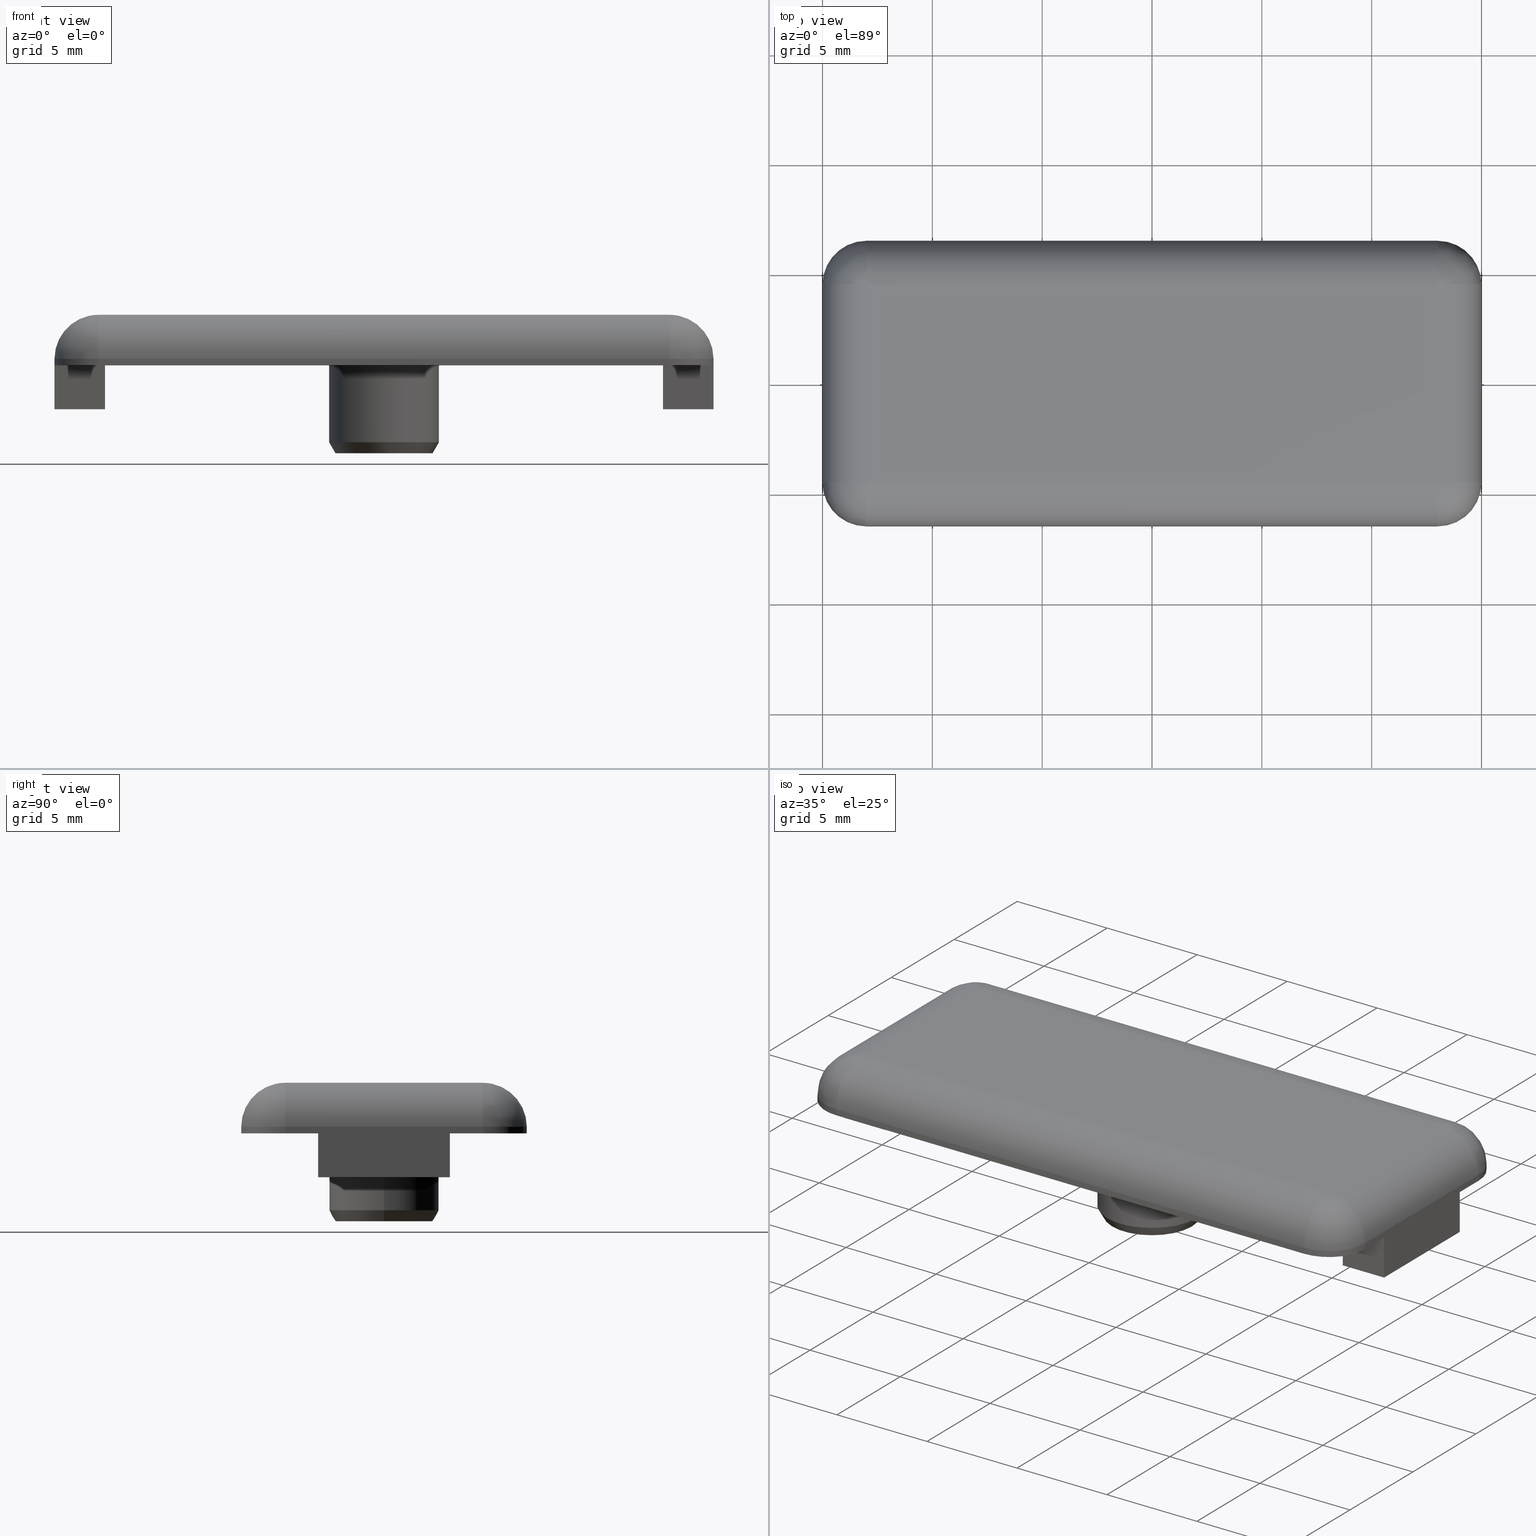
[diagram: canonical four-view strip — front | top / right | iso, engineering-drawing reading convention]
A machine part, canonical four-view strip (front | top / right | iso — engineering-drawing reading convention). The complete STEP part file that produces these views, byte-faithful:
ISO-10303-21;
HEADER;
/****************************************************************
 * Generated by software with PDE/Lib inside                    *
 * PDElib Version v4.4, created Mon 02/23/2004                  *
 * International Technegroup Inc. (www.iti-oh.com)              *
 ****************************************************************/
FILE_DESCRIPTION(('STEP AP203'),'2;1');
FILE_NAME('18.076.00.stp','2011-06-06T18:20:28',(''),(''),'2009.3.110','THINKDESIGN','');
FILE_SCHEMA(('CONFIG_CONTROL_DESIGN'));
ENDSEC;
DATA;
#2=CARTESIAN_POINT('',(-18.000018310589386,-7.800018310589508,2.300000000000000));
#3=DIRECTION('',(0.0,0.0,1.0));
#4=DIRECTION('',(1.0,0.0,0.0));
#5=AXIS2_PLACEMENT_3D('',#2,#3,#4);
#6=PLANE('',#5);
#7=CARTESIAN_POINT('',(-12.999999999999879,-4.500000000000000,2.300000000000000));
#8=VERTEX_POINT('',#7);
#9=CARTESIAN_POINT('',(13.000000000000110,-4.500000000000000,2.300000000000000));
#10=VERTEX_POINT('',#9);
#11=CARTESIAN_POINT('',(-12.999999999999879,-4.500000000000000,2.300000000000000));
#12=DIRECTION('',(1.0,0.0,0.0));
#13=VECTOR('',#12,25.999999999999989);
#14=LINE('',#11,#13);
#15=EDGE_CURVE('',#8,#10,#14,.T.);
#16=ORIENTED_EDGE('',*,*,#15,.T.);
#17=CARTESIAN_POINT('',(13.000000000000110,4.500000000000000,2.300000000000000));
#18=VERTEX_POINT('',#17);
#19=CARTESIAN_POINT('',(13.000000000000110,-4.500000000000000,2.300000000000000));
#20=DIRECTION('',(0.0,1.0,0.0));
#21=VECTOR('',#20,9.0);
#22=LINE('',#19,#21);
#23=EDGE_CURVE('',#10,#18,#22,.T.);
#24=ORIENTED_EDGE('',*,*,#23,.T.);
#25=CARTESIAN_POINT('',(-12.999999999999879,4.500000000000000,2.300000000000000));
#26=VERTEX_POINT('',#25);
#27=CARTESIAN_POINT('',(13.000000000000110,4.500000000000000,2.300000000000000));
#28=DIRECTION('',(-1.0,0.0,0.0));
#29=VECTOR('',#28,25.999999999999989);
#30=LINE('',#27,#29);
#31=EDGE_CURVE('',#18,#26,#30,.T.);
#32=ORIENTED_EDGE('',*,*,#31,.T.);
#33=CARTESIAN_POINT('',(-12.999999999999879,4.500000000000000,2.300000000000000));
#34=DIRECTION('',(0.0,-1.0,0.0));
#35=VECTOR('',#34,9.0);
#36=LINE('',#33,#35);
#37=EDGE_CURVE('',#26,#8,#36,.T.);
#38=ORIENTED_EDGE('',*,*,#37,.T.);
#39=EDGE_LOOP('',(#16,#24,#32,#38));
#40=FACE_OUTER_BOUND('',#39,.T.);
#41=ADVANCED_FACE('',(#40),#6,.T.);
#42=CARTESIAN_POINT('',(-18.000018310589386,-7.800018310589508,0.0));
#43=DIRECTION('',(0.0,0.0,1.0));
#44=DIRECTION('',(1.0,0.0,0.0));
#45=AXIS2_PLACEMENT_3D('',#42,#43,#44);
#46=PLANE('',#45);
#47=CARTESIAN_POINT('',(13.000000000000110,6.500000000000000,0.0));
#48=VERTEX_POINT('',#47);
#49=CARTESIAN_POINT('',(15.000000000000110,4.500000000000000,0.0));
#50=VERTEX_POINT('',#49);
#51=CARTESIAN_POINT('',(13.000000000000110,4.500000000000000,0.0));
#52=DIRECTION('',(0.0,0.0,-1.0));
#53=DIRECTION('',(0.0,1.0,0.0));
#54=AXIS2_PLACEMENT_3D('',#51,#52,#53);
#55=CIRCLE('',#54,2.0);
#56=EDGE_CURVE('',#48,#50,#55,.T.);
#57=ORIENTED_EDGE('',*,*,#56,.T.);
#58=CARTESIAN_POINT('',(15.000000000000110,3.0,0.0));
#59=VERTEX_POINT('',#58);
#60=CARTESIAN_POINT('',(15.000000000000110,3.0,0.0));
#61=DIRECTION('',(0.0,1.0,0.0));
#62=VECTOR('',#61,1.500000000000000);
#63=LINE('',#60,#62);
#64=EDGE_CURVE('',#59,#50,#63,.T.);
#65=ORIENTED_EDGE('',*,*,#64,.F.);
#66=CARTESIAN_POINT('',(12.700000000000159,3.0,0.0));
#67=VERTEX_POINT('',#66);
#68=CARTESIAN_POINT('',(12.700000000000159,3.0,0.0));
#69=DIRECTION('',(1.0,0.0,0.0));
#70=VECTOR('',#69,2.299999999999951);
#71=LINE('',#68,#70);
#72=EDGE_CURVE('',#67,#59,#71,.T.);
#73=ORIENTED_EDGE('',*,*,#72,.F.);
#74=CARTESIAN_POINT('',(12.700000000000159,-3.0,0.0));
#75=VERTEX_POINT('',#74);
#76=CARTESIAN_POINT('',(12.700000000000159,-3.0,0.0));
#77=DIRECTION('',(0.0,1.0,0.0));
#78=VECTOR('',#77,6.0);
#79=LINE('',#76,#78);
#80=EDGE_CURVE('',#75,#67,#79,.T.);
#81=ORIENTED_EDGE('',*,*,#80,.F.);
#82=CARTESIAN_POINT('',(15.000000000000110,-3.0,0.0));
#83=VERTEX_POINT('',#82);
#84=CARTESIAN_POINT('',(15.000000000000110,-3.0,0.0));
#85=DIRECTION('',(-1.0,0.0,0.0));
#86=VECTOR('',#85,2.299999999999951);
#87=LINE('',#84,#86);
#88=EDGE_CURVE('',#83,#75,#87,.T.);
#89=ORIENTED_EDGE('',*,*,#88,.F.);
#90=CARTESIAN_POINT('',(15.000000000000110,-4.500000000000000,0.0));
#91=VERTEX_POINT('',#90);
#92=CARTESIAN_POINT('',(15.000000000000110,-4.500000000000000,0.0));
#93=DIRECTION('',(0.0,1.0,0.0));
#94=VECTOR('',#93,1.500000000000000);
#95=LINE('',#92,#94);
#96=EDGE_CURVE('',#91,#83,#95,.T.);
#97=ORIENTED_EDGE('',*,*,#96,.F.);
#98=CARTESIAN_POINT('',(13.000000000000110,-6.500000000000000,0.0));
#99=VERTEX_POINT('',#98);
#100=CARTESIAN_POINT('',(13.000000000000110,-4.500000000000000,0.0));
#101=DIRECTION('',(0.0,0.0,-1.0));
#102=DIRECTION('',(1.0,0.0,0.0));
#103=AXIS2_PLACEMENT_3D('',#100,#101,#102);
#104=CIRCLE('',#103,2.0);
#105=EDGE_CURVE('',#91,#99,#104,.T.);
#106=ORIENTED_EDGE('',*,*,#105,.T.);
#107=CARTESIAN_POINT('',(-12.999999999999879,-6.500000000000000,0.0));
#108=VERTEX_POINT('',#107);
#109=CARTESIAN_POINT('',(-12.999999999999879,-6.500000000000000,0.0));
#110=DIRECTION('',(1.0,0.0,0.0));
#111=VECTOR('',#110,25.999999999999989);
#112=LINE('',#109,#111);
#113=EDGE_CURVE('',#108,#99,#112,.T.);
#114=ORIENTED_EDGE('',*,*,#113,.F.);
#115=CARTESIAN_POINT('',(-14.999999999999879,-4.500000000000000,0.0));
#116=VERTEX_POINT('',#115);
#117=CARTESIAN_POINT('',(-12.999999999999879,-4.500000000000000,0.0));
#118=DIRECTION('',(0.0,0.0,-1.0));
#119=DIRECTION('',(0.0,-1.0,0.0));
#120=AXIS2_PLACEMENT_3D('',#117,#118,#119);
#121=CIRCLE('',#120,2.0);
#122=EDGE_CURVE('',#108,#116,#121,.T.);
#123=ORIENTED_EDGE('',*,*,#122,.T.);
#124=CARTESIAN_POINT('',(-14.999999999999879,-3.0,0.0));
#125=VERTEX_POINT('',#124);
#126=CARTESIAN_POINT('',(-14.999999999999879,-3.0,0.0));
#127=DIRECTION('',(0.0,-1.0,0.0));
#128=VECTOR('',#127,1.500000000000000);
#129=LINE('',#126,#128);
#130=EDGE_CURVE('',#125,#116,#129,.T.);
#131=ORIENTED_EDGE('',*,*,#130,.F.);
#132=CARTESIAN_POINT('',(-12.699999999999930,-3.0,0.0));
#133=VERTEX_POINT('',#132);
#134=CARTESIAN_POINT('',(-12.699999999999930,-3.0,0.0));
#135=DIRECTION('',(-1.0,0.0,0.0));
#136=VECTOR('',#135,2.299999999999949);
#137=LINE('',#134,#136);
#138=EDGE_CURVE('',#133,#125,#137,.T.);
#139=ORIENTED_EDGE('',*,*,#138,.F.);
#140=CARTESIAN_POINT('',(-12.699999999999930,3.0,0.0));
#141=VERTEX_POINT('',#140);
#142=CARTESIAN_POINT('',(-12.699999999999930,3.0,0.0));
#143=DIRECTION('',(0.0,-1.0,0.0));
#144=VECTOR('',#143,6.0);
#145=LINE('',#142,#144);
#146=EDGE_CURVE('',#141,#133,#145,.T.);
#147=ORIENTED_EDGE('',*,*,#146,.F.);
#148=CARTESIAN_POINT('',(-14.999999999999879,3.0,0.0));
#149=VERTEX_POINT('',#148);
#150=CARTESIAN_POINT('',(-14.999999999999879,3.0,0.0));
#151=DIRECTION('',(1.0,0.0,0.0));
#152=VECTOR('',#151,2.299999999999949);
#153=LINE('',#150,#152);
#154=EDGE_CURVE('',#149,#141,#153,.T.);
#155=ORIENTED_EDGE('',*,*,#154,.F.);
#156=CARTESIAN_POINT('',(-14.999999999999879,4.500000000000000,0.0));
#157=VERTEX_POINT('',#156);
#158=CARTESIAN_POINT('',(-14.999999999999879,4.500000000000000,0.0));
#159=DIRECTION('',(0.0,-1.0,0.0));
#160=VECTOR('',#159,1.500000000000000);
#161=LINE('',#158,#160);
#162=EDGE_CURVE('',#157,#149,#161,.T.);
#163=ORIENTED_EDGE('',*,*,#162,.F.);
#164=CARTESIAN_POINT('',(-12.999999999999879,6.500000000000000,0.0));
#165=VERTEX_POINT('',#164);
#166=CARTESIAN_POINT('',(-12.999999999999879,4.500000000000000,0.0));
#167=DIRECTION('',(0.0,0.0,-1.0));
#168=DIRECTION('',(-1.0,0.0,0.0));
#169=AXIS2_PLACEMENT_3D('',#166,#167,#168);
#170=CIRCLE('',#169,2.0);
#171=EDGE_CURVE('',#157,#165,#170,.T.);
#172=ORIENTED_EDGE('',*,*,#171,.T.);
#173=CARTESIAN_POINT('',(13.000000000000110,6.500000000000000,0.0));
#174=DIRECTION('',(-1.0,0.0,0.0));
#175=VECTOR('',#174,25.999999999999989);
#176=LINE('',#173,#175);
#177=EDGE_CURVE('',#48,#165,#176,.T.);
#178=ORIENTED_EDGE('',*,*,#177,.F.);
#179=EDGE_LOOP('',(#57,#65,#73,#81,#89,#97,#106,#114,#123,#131,#139,#147,#155,#163,#172,#178));
#180=FACE_OUTER_BOUND('',#179,.T.);
#181=CARTESIAN_POINT('',(-2.500000000000000,0.0,0.0));
#182=VERTEX_POINT('',#181);
#183=CARTESIAN_POINT('',(2.500000000000000,0.0,0.0));
#184=VERTEX_POINT('',#183);
#185=CARTESIAN_POINT('',(0.0,0.0,0.0));
#186=DIRECTION('',(0.0,0.0,-1.0));
#187=DIRECTION('',(1.0,0.0,0.0));
#188=AXIS2_PLACEMENT_3D('',#185,#186,#187);
#189=CIRCLE('',#188,2.500000000000000);
#190=EDGE_CURVE('',#182,#184,#189,.T.);
#191=ORIENTED_EDGE('',*,*,#190,.F.);
#192=CARTESIAN_POINT('',(0.0,0.0,0.0));
#193=DIRECTION('',(0.0,0.0,-1.0));
#194=DIRECTION('',(1.0,0.0,0.0));
#195=AXIS2_PLACEMENT_3D('',#192,#193,#194);
#196=CIRCLE('',#195,2.500000000000000);
#197=EDGE_CURVE('',#184,#182,#196,.T.);
#198=ORIENTED_EDGE('',*,*,#197,.F.);
#199=EDGE_LOOP('',(#191,#198));
#200=FACE_BOUND('',#199,.T.);
#201=ADVANCED_FACE('',(#180,#200),#46,.F.);
#202=CARTESIAN_POINT('',(-18.000018310589386,-7.800018310589508,0.0));
#203=DIRECTION('',(0.0,0.0,1.0));
#204=DIRECTION('',(1.0,0.0,0.0));
#205=AXIS2_PLACEMENT_3D('',#202,#203,#204);
#206=PLANE('',#205);
#207=CARTESIAN_POINT('',(-1.499999999999886,0.0,0.0));
#208=VERTEX_POINT('',#207);
#209=CARTESIAN_POINT('',(1.499999999999886,3.673940E-016,0.0));
#210=VERTEX_POINT('',#209);
#211=CARTESIAN_POINT('',(0.0,0.0,0.0));
#212=DIRECTION('',(0.0,0.0,1.0));
#213=DIRECTION('',(1.0,0.0,0.0));
#214=AXIS2_PLACEMENT_3D('',#211,#212,#213);
#215=CIRCLE('',#214,1.499999999999886);
#216=EDGE_CURVE('',#208,#210,#215,.T.);
#217=ORIENTED_EDGE('',*,*,#216,.F.);
#218=CARTESIAN_POINT('',(0.0,0.0,0.0));
#219=DIRECTION('',(0.0,0.0,1.0));
#220=DIRECTION('',(1.0,0.0,0.0));
#221=AXIS2_PLACEMENT_3D('',#218,#219,#220);
#222=CIRCLE('',#221,1.499999999999886);
#223=EDGE_CURVE('',#210,#208,#222,.T.);
#224=ORIENTED_EDGE('',*,*,#223,.F.);
#225=EDGE_LOOP('',(#217,#224));
#226=FACE_OUTER_BOUND('',#225,.T.);
#227=ADVANCED_FACE('',(#226),#206,.F.);
#228=CARTESIAN_POINT('',(-12.999999999999879,4.500000000000000,0.0));
#229=DIRECTION('',(0.0,0.0,-1.0));
#230=DIRECTION('',(-1.0,0.0,0.0));
#231=AXIS2_PLACEMENT_3D('',#228,#229,#230);
#232=CYLINDRICAL_SURFACE('',#231,2.0);
#233=CARTESIAN_POINT('',(-14.999999999999879,4.500000000000000,0.300000000000000));
#234=VERTEX_POINT('',#233);
#235=CARTESIAN_POINT('',(-14.999999999999879,4.500000000000000,0.0));
#236=DIRECTION('',(0.0,0.0,1.0));
#237=VECTOR('',#236,0.300000000000000);
#238=LINE('',#235,#237);
#239=EDGE_CURVE('',#157,#234,#238,.T.);
#240=ORIENTED_EDGE('',*,*,#239,.T.);
#241=CARTESIAN_POINT('',(-12.999999999999879,6.500000000000000,0.300000000000000));
#242=VERTEX_POINT('',#241);
#243=CARTESIAN_POINT('',(-12.999999999999879,4.500000000000000,0.300000000000000));
#244=DIRECTION('',(0.0,0.0,1.0));
#245=DIRECTION('',(-1.0,0.0,0.0));
#246=AXIS2_PLACEMENT_3D('',#243,#244,#245);
#247=CIRCLE('',#246,2.0);
#248=EDGE_CURVE('',#242,#234,#247,.T.);
#249=ORIENTED_EDGE('',*,*,#248,.F.);
#250=CARTESIAN_POINT('',(-12.999999999999879,6.500000000000000,0.0));
#251=DIRECTION('',(0.0,0.0,1.0));
#252=VECTOR('',#251,0.300000000000000);
#253=LINE('',#250,#252);
#254=EDGE_CURVE('',#165,#242,#253,.T.);
#255=ORIENTED_EDGE('',*,*,#254,.F.);
#256=ORIENTED_EDGE('',*,*,#171,.F.);
#257=EDGE_LOOP('',(#240,#249,#255,#256));
#258=FACE_OUTER_BOUND('',#257,.T.);
#259=ADVANCED_FACE('',(#258),#232,.T.);
#260=CARTESIAN_POINT('',(-12.999999999999879,-4.500000000000000,0.0));
#261=DIRECTION('',(0.0,0.0,-1.0));
#262=DIRECTION('',(0.0,-1.0,0.0));
#263=AXIS2_PLACEMENT_3D('',#260,#261,#262);
#264=CYLINDRICAL_SURFACE('',#263,2.0);
#265=CARTESIAN_POINT('',(-14.999999999999879,-4.500000000000000,0.300000000000000));
#266=VERTEX_POINT('',#265);
#267=CARTESIAN_POINT('',(-12.999999999999879,-6.500000000000000,0.300000000000000));
#268=VERTEX_POINT('',#267);
#269=CARTESIAN_POINT('',(-12.999999999999879,-4.500000000000000,0.300000000000000));
#270=DIRECTION('',(0.0,0.0,1.0));
#271=DIRECTION('',(0.0,-1.0,0.0));
#272=AXIS2_PLACEMENT_3D('',#269,#270,#271);
#273=CIRCLE('',#272,2.0);
#274=EDGE_CURVE('',#266,#268,#273,.T.);
#275=ORIENTED_EDGE('',*,*,#274,.F.);
#276=CARTESIAN_POINT('',(-14.999999999999879,-4.500000000000000,0.0));
#277=DIRECTION('',(0.0,0.0,1.0));
#278=VECTOR('',#277,0.300000000000000);
#279=LINE('',#276,#278);
#280=EDGE_CURVE('',#116,#266,#279,.T.);
#281=ORIENTED_EDGE('',*,*,#280,.F.);
#282=ORIENTED_EDGE('',*,*,#122,.F.);
#283=CARTESIAN_POINT('',(-12.999999999999879,-6.500000000000000,0.0));
#284=DIRECTION('',(0.0,0.0,1.0));
#285=VECTOR('',#284,0.300000000000000);
#286=LINE('',#283,#285);
#287=EDGE_CURVE('',#108,#268,#286,.T.);
#288=ORIENTED_EDGE('',*,*,#287,.T.);
#289=EDGE_LOOP('',(#275,#281,#282,#288));
#290=FACE_OUTER_BOUND('',#289,.T.);
#291=ADVANCED_FACE('',(#290),#264,.T.);
#292=CARTESIAN_POINT('',(13.000000000000110,4.500000000000000,0.0));
#293=DIRECTION('',(0.0,0.0,-1.0));
#294=DIRECTION('',(0.0,1.0,0.0));
#295=AXIS2_PLACEMENT_3D('',#292,#293,#294);
#296=CYLINDRICAL_SURFACE('',#295,2.0);
#297=CARTESIAN_POINT('',(13.000000000000110,6.500000000000000,0.300000000000000));
#298=VERTEX_POINT('',#297);
#299=CARTESIAN_POINT('',(13.000000000000110,6.500000000000000,0.0));
#300=DIRECTION('',(0.0,0.0,1.0));
#301=VECTOR('',#300,0.300000000000000);
#302=LINE('',#299,#301);
#303=EDGE_CURVE('',#48,#298,#302,.T.);
#304=ORIENTED_EDGE('',*,*,#303,.T.);
#305=CARTESIAN_POINT('',(15.000000000000110,4.500000000000000,0.300000000000000));
#306=VERTEX_POINT('',#305);
#307=CARTESIAN_POINT('',(13.000000000000110,4.500000000000000,0.300000000000000));
#308=DIRECTION('',(0.0,0.0,1.0));
#309=DIRECTION('',(0.0,1.0,0.0));
#310=AXIS2_PLACEMENT_3D('',#307,#308,#309);
#311=CIRCLE('',#310,2.0);
#312=EDGE_CURVE('',#306,#298,#311,.T.);
#313=ORIENTED_EDGE('',*,*,#312,.F.);
#314=CARTESIAN_POINT('',(15.000000000000110,4.500000000000000,0.0));
#315=DIRECTION('',(0.0,0.0,1.0));
#316=VECTOR('',#315,0.300000000000000);
#317=LINE('',#314,#316);
#318=EDGE_CURVE('',#50,#306,#317,.T.);
#319=ORIENTED_EDGE('',*,*,#318,.F.);
#320=ORIENTED_EDGE('',*,*,#56,.F.);
#321=EDGE_LOOP('',(#304,#313,#319,#320));
#322=FACE_OUTER_BOUND('',#321,.T.);
#323=ADVANCED_FACE('',(#322),#296,.T.);
#324=CARTESIAN_POINT('',(13.000000000000110,-4.500000000000000,0.0));
#325=DIRECTION('',(0.0,0.0,-1.0));
#326=DIRECTION('',(1.0,0.0,0.0));
#327=AXIS2_PLACEMENT_3D('',#324,#325,#326);
#328=CYLINDRICAL_SURFACE('',#327,2.0);
#329=CARTESIAN_POINT('',(15.000000000000110,-4.500000000000000,0.300000000000000));
#330=VERTEX_POINT('',#329);
#331=CARTESIAN_POINT('',(15.000000000000110,-4.500000000000000,0.0));
#332=DIRECTION('',(0.0,0.0,1.0));
#333=VECTOR('',#332,0.300000000000000);
#334=LINE('',#331,#333);
#335=EDGE_CURVE('',#91,#330,#334,.T.);
#336=ORIENTED_EDGE('',*,*,#335,.T.);
#337=CARTESIAN_POINT('',(13.000000000000110,-6.500000000000000,0.300000000000000));
#338=VERTEX_POINT('',#337);
#339=CARTESIAN_POINT('',(13.000000000000110,-4.500000000000000,0.300000000000000));
#340=DIRECTION('',(0.0,0.0,1.0));
#341=DIRECTION('',(1.0,0.0,0.0));
#342=AXIS2_PLACEMENT_3D('',#339,#340,#341);
#343=CIRCLE('',#342,2.0);
#344=EDGE_CURVE('',#338,#330,#343,.T.);
#345=ORIENTED_EDGE('',*,*,#344,.F.);
#346=CARTESIAN_POINT('',(13.000000000000110,-6.500000000000000,0.0));
#347=DIRECTION('',(0.0,0.0,1.0));
#348=VECTOR('',#347,0.300000000000000);
#349=LINE('',#346,#348);
#350=EDGE_CURVE('',#99,#338,#349,.T.);
#351=ORIENTED_EDGE('',*,*,#350,.F.);
#352=ORIENTED_EDGE('',*,*,#105,.F.);
#353=EDGE_LOOP('',(#336,#345,#351,#352));
#354=FACE_OUTER_BOUND('',#353,.T.);
#355=ADVANCED_FACE('',(#354),#328,.T.);
#356=CARTESIAN_POINT('',(-12.999999999999879,6.500000000000000,0.300000000000000));
#357=DIRECTION('',(0.0,1.0,0.0));
#358=DIRECTION('',(-1.0,0.0,5.551115E-017));
#359=AXIS2_PLACEMENT_3D('',#356,#357,#358);
#360=CYLINDRICAL_SURFACE('',#359,2.0);
#361=CARTESIAN_POINT('',(-12.999999999999879,4.500000000000000,0.300000000000000));
#362=DIRECTION('',(0.0,-1.0,0.0));
#363=DIRECTION('',(-1.0,0.0,5.551115E-017));
#364=AXIS2_PLACEMENT_3D('',#361,#362,#363);
#365=CIRCLE('',#364,2.0);
#366=EDGE_CURVE('',#26,#234,#365,.T.);
#367=ORIENTED_EDGE('',*,*,#366,.T.);
#368=CARTESIAN_POINT('',(-14.999999999999879,4.500000000000000,0.300000000000000));
#369=DIRECTION('',(0.0,-1.0,0.0));
#370=VECTOR('',#369,9.0);
#371=LINE('',#368,#370);
#372=EDGE_CURVE('',#234,#266,#371,.T.);
#373=ORIENTED_EDGE('',*,*,#372,.T.);
#374=CARTESIAN_POINT('',(-12.999999999999879,-4.500000000000000,0.300000000000000));
#375=DIRECTION('',(0.0,-1.0,0.0));
#376=DIRECTION('',(-1.0,0.0,5.551115E-017));
#377=AXIS2_PLACEMENT_3D('',#374,#375,#376);
#378=CIRCLE('',#377,2.0);
#379=EDGE_CURVE('',#8,#266,#378,.T.);
#380=ORIENTED_EDGE('',*,*,#379,.F.);
#381=ORIENTED_EDGE('',*,*,#37,.F.);
#382=EDGE_LOOP('',(#367,#373,#380,#381));
#383=FACE_OUTER_BOUND('',#382,.T.);
#384=ADVANCED_FACE('',(#383),#360,.T.);
#385=CARTESIAN_POINT('',(15.000000000000110,4.500000000000000,0.300000000000000));
#386=DIRECTION('',(1.0,0.0,0.0));
#387=DIRECTION('',(0.0,1.0,5.551115E-017));
#388=AXIS2_PLACEMENT_3D('',#385,#386,#387);
#389=CYLINDRICAL_SURFACE('',#388,2.0);
#390=CARTESIAN_POINT('',(13.000000000000110,4.500000000000000,0.300000000000000));
#391=DIRECTION('',(-1.0,0.0,0.0));
#392=DIRECTION('',(0.0,1.0,5.551115E-017));
#393=AXIS2_PLACEMENT_3D('',#390,#391,#392);
#394=CIRCLE('',#393,2.0);
#395=EDGE_CURVE('',#18,#298,#394,.T.);
#396=ORIENTED_EDGE('',*,*,#395,.T.);
#397=CARTESIAN_POINT('',(13.000000000000110,6.500000000000000,0.300000000000000));
#398=DIRECTION('',(-1.0,0.0,0.0));
#399=VECTOR('',#398,25.999999999999989);
#400=LINE('',#397,#399);
#401=EDGE_CURVE('',#298,#242,#400,.T.);
#402=ORIENTED_EDGE('',*,*,#401,.T.);
#403=CARTESIAN_POINT('',(-12.999999999999879,4.500000000000000,0.300000000000000));
#404=DIRECTION('',(-1.0,0.0,0.0));
#405=DIRECTION('',(0.0,1.0,5.551115E-017));
#406=AXIS2_PLACEMENT_3D('',#403,#404,#405);
#407=CIRCLE('',#406,2.0);
#408=EDGE_CURVE('',#26,#242,#407,.T.);
#409=ORIENTED_EDGE('',*,*,#408,.F.);
#410=ORIENTED_EDGE('',*,*,#31,.F.);
#411=EDGE_LOOP('',(#396,#402,#409,#410));
#412=FACE_OUTER_BOUND('',#411,.T.);
#413=ADVANCED_FACE('',(#412),#389,.T.);
#414=CARTESIAN_POINT('',(15.000000000000110,6.500000000000000,0.0));
#415=DIRECTION('',(0.0,1.0,0.0));
#416=DIRECTION('',(-1.0,0.0,0.0));
#417=AXIS2_PLACEMENT_3D('',#414,#415,#416);
#418=PLANE('',#417);
#419=ORIENTED_EDGE('',*,*,#177,.T.);
#420=ORIENTED_EDGE('',*,*,#254,.T.);
#421=ORIENTED_EDGE('',*,*,#401,.F.);
#422=ORIENTED_EDGE('',*,*,#303,.F.);
#423=EDGE_LOOP('',(#419,#420,#421,#422));
#424=FACE_OUTER_BOUND('',#423,.T.);
#425=ADVANCED_FACE('',(#424),#418,.T.);
#426=CARTESIAN_POINT('',(-14.999999999999879,-6.500000000000000,0.0));
#427=DIRECTION('',(0.0,-1.0,0.0));
#428=DIRECTION('',(1.0,0.0,0.0));
#429=AXIS2_PLACEMENT_3D('',#426,#427,#428);
#430=PLANE('',#429);
#431=ORIENTED_EDGE('',*,*,#350,.T.);
#432=CARTESIAN_POINT('',(-12.999999999999879,-6.500000000000000,0.300000000000000));
#433=DIRECTION('',(1.0,0.0,0.0));
#434=VECTOR('',#433,25.999999999999989);
#435=LINE('',#432,#434);
#436=EDGE_CURVE('',#268,#338,#435,.T.);
#437=ORIENTED_EDGE('',*,*,#436,.F.);
#438=ORIENTED_EDGE('',*,*,#287,.F.);
#439=ORIENTED_EDGE('',*,*,#113,.T.);
#440=EDGE_LOOP('',(#431,#437,#438,#439));
#441=FACE_OUTER_BOUND('',#440,.T.);
#442=ADVANCED_FACE('',(#441),#430,.T.);
#443=CARTESIAN_POINT('',(-14.999999999999879,-4.500000000000000,0.300000000000000));
#444=DIRECTION('',(-1.0,0.0,0.0));
#445=DIRECTION('',(0.0,-1.0,5.551115E-017));
#446=AXIS2_PLACEMENT_3D('',#443,#444,#445);
#447=CYLINDRICAL_SURFACE('',#446,2.0);
#448=CARTESIAN_POINT('',(-12.999999999999879,-4.500000000000000,0.300000000000000));
#449=DIRECTION('',(1.0,0.0,0.0));
#450=DIRECTION('',(0.0,-1.0,5.551115E-017));
#451=AXIS2_PLACEMENT_3D('',#448,#449,#450);
#452=CIRCLE('',#451,2.0);
#453=EDGE_CURVE('',#8,#268,#452,.T.);
#454=ORIENTED_EDGE('',*,*,#453,.T.);
#455=ORIENTED_EDGE('',*,*,#436,.T.);
#456=CARTESIAN_POINT('',(13.000000000000110,-4.500000000000000,0.300000000000000));
#457=DIRECTION('',(1.0,0.0,0.0));
#458=DIRECTION('',(0.0,-1.0,5.551115E-017));
#459=AXIS2_PLACEMENT_3D('',#456,#457,#458);
#460=CIRCLE('',#459,2.0);
#461=EDGE_CURVE('',#10,#338,#460,.T.);
#462=ORIENTED_EDGE('',*,*,#461,.F.);
#463=ORIENTED_EDGE('',*,*,#15,.F.);
#464=EDGE_LOOP('',(#454,#455,#462,#463));
#465=FACE_OUTER_BOUND('',#464,.T.);
#466=ADVANCED_FACE('',(#465),#447,.T.);
#467=CARTESIAN_POINT('',(13.000000000000110,-6.500000000000000,0.300000000000000));
#468=DIRECTION('',(0.0,-1.0,0.0));
#469=DIRECTION('',(1.0,0.0,5.551115E-017));
#470=AXIS2_PLACEMENT_3D('',#467,#468,#469);
#471=CYLINDRICAL_SURFACE('',#470,2.0);
#472=CARTESIAN_POINT('',(13.000000000000110,-4.500000000000000,0.300000000000000));
#473=DIRECTION('',(0.0,1.0,0.0));
#474=DIRECTION('',(1.0,0.0,5.551115E-017));
#475=AXIS2_PLACEMENT_3D('',#472,#473,#474);
#476=CIRCLE('',#475,2.0);
#477=EDGE_CURVE('',#10,#330,#476,.T.);
#478=ORIENTED_EDGE('',*,*,#477,.T.);
#479=CARTESIAN_POINT('',(15.000000000000110,-4.500000000000000,0.300000000000000));
#480=DIRECTION('',(0.0,1.0,0.0));
#481=VECTOR('',#480,9.0);
#482=LINE('',#479,#481);
#483=EDGE_CURVE('',#330,#306,#482,.T.);
#484=ORIENTED_EDGE('',*,*,#483,.T.);
#485=CARTESIAN_POINT('',(13.000000000000110,4.500000000000000,0.300000000000000));
#486=DIRECTION('',(0.0,1.0,0.0));
#487=DIRECTION('',(1.0,0.0,5.551115E-017));
#488=AXIS2_PLACEMENT_3D('',#485,#486,#487);
#489=CIRCLE('',#488,2.0);
#490=EDGE_CURVE('',#18,#306,#489,.T.);
#491=ORIENTED_EDGE('',*,*,#490,.F.);
#492=ORIENTED_EDGE('',*,*,#23,.F.);
#493=EDGE_LOOP('',(#478,#484,#491,#492));
#494=FACE_OUTER_BOUND('',#493,.T.);
#495=ADVANCED_FACE('',(#494),#471,.T.);
#496=CARTESIAN_POINT('',(13.000000000000110,-4.500000000000000,2.300000000000000));
#497=CARTESIAN_POINT('',(13.000000000000110,-4.500000000000000,2.300000000000000));
#498=CARTESIAN_POINT('',(13.000000000000115,-4.500000000000002,2.300000000000001));
#499=CARTESIAN_POINT('',(13.000000000000110,-4.500000000000000,2.300000000000000));
#500=CARTESIAN_POINT('',(13.000000000000110,-4.500000000000000,2.300000000000000));
#501=CARTESIAN_POINT('',(13.000000000000110,-4.499999999999999,2.300000000000000));
#502=CARTESIAN_POINT('',(13.000000000000110,-4.500000000000000,2.300000000000000));
#503=CARTESIAN_POINT('',(13.000000000000110,-4.565423565769891,2.300000000000001));
#504=CARTESIAN_POINT('',(13.005426460327003,-4.559997664538583,2.300000453920655));
#505=CARTESIAN_POINT('',(13.016328993763150,-4.549143002019507,2.300002385769371));
#506=CARTESIAN_POINT('',(13.032774361357911,-4.532774361357802,2.300003555523812));
#507=CARTESIAN_POINT('',(13.049143002019617,-4.516328993763034,2.300002385769375));
#508=CARTESIAN_POINT('',(13.059997664538693,-4.505426460326894,2.300000453920658));
#509=CARTESIAN_POINT('',(13.065423565770001,-4.500000000000000,2.300000000000004));
#510=CARTESIAN_POINT('',(13.000000000000110,-4.696753935604516,2.293541209028190));
#511=CARTESIAN_POINT('',(13.016406829329274,-4.680344225089959,2.294622280497522));
#512=CARTESIAN_POINT('',(13.049197959205747,-4.647527305120372,2.296241293834774));
#513=CARTESIAN_POINT('',(13.098344225328203,-4.598344225328100,2.297050195276507));
#514=CARTESIAN_POINT('',(13.147527305120487,-4.549197959205634,2.296241293834771));
#515=CARTESIAN_POINT('',(13.180344225090071,-4.516406829329166,2.294622280497520));
#516=CARTESIAN_POINT('',(13.196753935604628,-4.499999999999999,2.293541209028189));
#517=CARTESIAN_POINT('',(13.000000000000114,-4.957444845403460,2.254784155391458));
#518=CARTESIAN_POINT('',(13.038536273443192,-4.920195268760311,2.262243085621857));
#519=CARTESIAN_POINT('',(13.115644857475006,-4.845031016592134,2.273453728430769));
#520=CARTESIAN_POINT('',(13.230831085410387,-4.730831085410267,2.279064616325389));
#521=CARTESIAN_POINT('',(13.345031016592234,-4.615644857474893,2.273453728430769));
#522=CARTESIAN_POINT('',(13.420195268760423,-4.538536273443080,2.262243085621859));
#523=CARTESIAN_POINT('',(13.457444845403568,-4.500000000000002,2.254784155391459));
#524=CARTESIAN_POINT('',(13.000000000000105,-5.411269959842382,2.116522979621470));
#525=CARTESIAN_POINT('',(13.079285305438521,-5.342108322795179,2.145813898068746));
#526=CARTESIAN_POINT('',(13.238029025944801,-5.198614438266795,2.189966036670724));
#527=CARTESIAN_POINT('',(13.472139321551586,-4.972139321551488,2.212096054712062));
#528=CARTESIAN_POINT('',(13.698614438266908,-4.738029025944691,2.189966036670723));
#529=CARTESIAN_POINT('',(13.842108322795283,-4.579285305438411,2.145813898068744));
#530=CARTESIAN_POINT('',(13.911269959842492,-4.499999999999998,2.116522979621470));
#531=CARTESIAN_POINT('',(13.000000000000112,-5.987326469838288,1.716631820898719));
#532=CARTESIAN_POINT('',(13.145470102214585,-5.906237011464735,1.797898286348173));
#533=CARTESIAN_POINT('',(13.437617342443811,-5.712330614062974,1.923352542653772));
#534=CARTESIAN_POINT('',(13.849737983433240,-5.349737983433126,1.986985818383675));
#535=CARTESIAN_POINT('',(14.212330614063081,-4.937617342443696,1.923352542653772));
#536=CARTESIAN_POINT('',(14.406237011464849,-4.645470102214476,1.797898286348174));
#537=CARTESIAN_POINT('',(14.487326469838395,-4.500000000000001,1.716631820898720));
#538=CARTESIAN_POINT('',(13.000000000000108,-6.332793466402271,1.165600782644201));
#539=CARTESIAN_POINT('',(13.214595861394233,-6.294453312197689,1.256848347895917));
#540=CARTESIAN_POINT('',(13.647444550914235,-6.141901925899036,1.402814264865778));
#541=CARTESIAN_POINT('',(14.216882559811484,-5.716882559811383,1.478258450321355));
#542=CARTESIAN_POINT('',(14.641901925899148,-5.147444550914121,1.402814264865777));
#543=CARTESIAN_POINT('',(14.794453312197804,-4.714595861394125,1.256848347895917));
#544=CARTESIAN_POINT('',(14.832793466402387,-4.500000000000000,1.165600782644201));
#545=CARTESIAN_POINT('',(13.000000000000114,-6.456005886180253,0.750211309209944));
#546=CARTESIAN_POINT('',(13.247477651187189,-6.444956999088944,0.805652908600539));
#547=CARTESIAN_POINT('',(13.747560914114402,-6.326586416565727,0.895273656900097));
#548=CARTESIAN_POINT('',(14.386217743853182,-5.886217743853065,0.941859661578889));
#549=CARTESIAN_POINT('',(14.826586416565835,-5.247560914114290,0.895273656900097));
#550=CARTESIAN_POINT('',(14.944956999089053,-4.747477651187076,0.805652908600539));
#551=CARTESIAN_POINT('',(14.956005886180360,-4.500000000000001,0.750211309209944));
#552=CARTESIAN_POINT('',(13.000000000000108,-6.493661319821928,0.495223121220345));
#553=CARTESIAN_POINT('',(13.258252333117746,-6.491982559340226,0.520664188858249));
#554=CARTESIAN_POINT('',(13.780340307557715,-6.385698245773376,0.561919473413236));
#555=CARTESIAN_POINT('',(14.441235976494772,-5.941235976494666,0.583401434977066));
#556=CARTESIAN_POINT('',(14.885698245773487,-5.280340307557593,0.561919473413235));
#557=CARTESIAN_POINT('',(14.991982559340336,-4.758252333117635,0.520664188858249));
#558=CARTESIAN_POINT('',(14.993661319822042,-4.500000000000000,0.495223121220345));
#559=CARTESIAN_POINT('',(13.000000000000110,-6.500000000000000,0.365423565769891));
#560=CARTESIAN_POINT('',(13.260091329830107,-6.500002776736806,0.373827648895719));
#561=CARTESIAN_POINT('',(13.786020490503516,-6.395937341933427,0.387462853122221));
#562=CARTESIAN_POINT('',(14.450827323400462,-5.950827323400355,0.394563633378272));
#563=CARTESIAN_POINT('',(14.895937341933546,-5.286020490503401,0.387462853122221));
#564=CARTESIAN_POINT('',(15.000002776736917,-4.760091329829998,0.373827648895719));
#565=CARTESIAN_POINT('',(15.000000000000114,-4.500000000000000,0.365423565769891));
#566=CARTESIAN_POINT('',(13.000000000000110,-6.500000000000000,0.300000000000000));
#567=CARTESIAN_POINT('',(13.260120429354949,-6.500000000000000,0.300000000000000));
#568=CARTESIAN_POINT('',(13.786055634686665,-6.395922447768443,0.300000000000000));
#569=CARTESIAN_POINT('',(14.450825822946005,-5.950825822945896,0.300000000000000));
#570=CARTESIAN_POINT('',(14.895922447768553,-5.286055634686550,0.300000000000000));
#571=CARTESIAN_POINT('',(15.000000000000110,-4.760120429354838,0.300000000000000));
#572=CARTESIAN_POINT('',(15.000000000000110,-4.500000000000000,0.300000000000000));
#573=B_SPLINE_SURFACE_WITH_KNOTS('',3,3,((#496,#503,#510,#517,#524,#531,#538,#545,#552,#559,#566),(#497,#504,#511,#518,#525,#532,#539,#546,#553,#560,#567),(#498,#505,#512,#519,#526,#533,#540,#547,#554,#561,#568),(#499,#506,#513,#520,#527,#534,#541,#548,#555,#562,#569),(#500,#507,#514,#521,#528,#535,#542,#549,#556,#563,#570),(#501,#508,#515,#522,#529,#536,#543,#550,#557,#564,#571),(#502,#509,#516,#523,#530,#537,#544,#551,#558,#565,#572)),.UNSPECIFIED.,.F.,.F.,.U.,(4,1,1,1,4),(4,1,1,1,1,1,1,1,4),(0.0,0.456884819279444,0.913769638558888,1.370654457838332,1.827539277117777),(0.0,0.168450816328602,0.337531680241882,0.679863139932531,1.399784191480694,2.210909377927192,2.661173399679213,2.894682586365700,3.130782840615567),.UNSPECIFIED.);
#574=ORIENTED_EDGE('',*,*,#477,.F.);
#575=ORIENTED_EDGE('',*,*,#461,.T.);
#576=ORIENTED_EDGE('',*,*,#344,.T.);
#577=EDGE_LOOP('',(#574,#575,#576));
#578=FACE_OUTER_BOUND('',#577,.T.);
#579=ADVANCED_FACE('',(#578),#573,.F.);
#580=CARTESIAN_POINT('',(13.000000000000110,4.500000000000000,2.300000000000000));
#581=CARTESIAN_POINT('',(13.000000000000110,4.500000000000000,2.300000000000000));
#582=CARTESIAN_POINT('',(13.000000000000110,4.500000000000000,2.300000000000000));
#583=CARTESIAN_POINT('',(13.000000000000108,4.499999999999999,2.299999999999999));
#584=CARTESIAN_POINT('',(13.000000000000114,4.500000000000001,2.300000000000000));
#585=CARTESIAN_POINT('',(13.000000000000110,4.500000000000000,2.300000000000000));
#586=CARTESIAN_POINT('',(13.000000000000110,4.500000000000000,2.300000000000000));
#587=CARTESIAN_POINT('',(13.065423565770001,4.500000000000000,2.300000000000004));
#588=CARTESIAN_POINT('',(13.059997664538693,4.505426460326894,2.300000453920659));
#589=CARTESIAN_POINT('',(13.049143002019617,4.516328993763034,2.300002385769374));
#590=CARTESIAN_POINT('',(13.032774361357907,4.532774361357802,2.300003555523809));
#591=CARTESIAN_POINT('',(13.016328993763150,4.549143002019506,2.300002385769376));
#592=CARTESIAN_POINT('',(13.005426460327003,4.559997664538583,2.300000453920655));
#593=CARTESIAN_POINT('',(13.000000000000110,4.565423565769891,2.300000000000001));
#594=CARTESIAN_POINT('',(13.196753935604628,4.499999999999999,2.293541209028189));
#595=CARTESIAN_POINT('',(13.180344225090071,4.516406829329166,2.294622280497519));
#596=CARTESIAN_POINT('',(13.147527305120487,4.549197959205633,2.296241293834771));
#597=CARTESIAN_POINT('',(13.098344225328198,4.598344225328102,2.297050195276509));
#598=CARTESIAN_POINT('',(13.049197959205747,4.647527305120370,2.296241293834771));
#599=CARTESIAN_POINT('',(13.016406829329274,4.680344225089959,2.294622280497522));
#600=CARTESIAN_POINT('',(13.000000000000110,4.696753935604516,2.293541209028190));
#601=CARTESIAN_POINT('',(13.457444845403568,4.500000000000002,2.254784155391459));
#602=CARTESIAN_POINT('',(13.420195268760423,4.538536273443080,2.262243085621859));
#603=CARTESIAN_POINT('',(13.345031016592241,4.615644857474894,2.273453728430770));
#604=CARTESIAN_POINT('',(13.230831085410383,4.730831085410262,2.279064616325387));
#605=CARTESIAN_POINT('',(13.115644857475006,4.845031016592138,2.273453728430771));
#606=CARTESIAN_POINT('',(13.038536273443192,4.920195268760311,2.262243085621857));
#607=CARTESIAN_POINT('',(13.000000000000114,4.957444845403460,2.254784155391458));
#608=CARTESIAN_POINT('',(13.911269959842491,4.499999999999998,2.116522979621470));
#609=CARTESIAN_POINT('',(13.842108322795283,4.579285305438411,2.145813898068743));
#610=CARTESIAN_POINT('',(13.698614438266905,4.738029025944689,2.189966036670723));
#611=CARTESIAN_POINT('',(13.472139321551587,4.972139321551490,2.212096054712062));
#612=CARTESIAN_POINT('',(13.238029025944801,5.198614438266791,2.189966036670722));
#613=CARTESIAN_POINT('',(13.079285305438519,5.342108322795179,2.145813898068745));
#614=CARTESIAN_POINT('',(13.000000000000103,5.411269959842382,2.116522979621470));
#615=CARTESIAN_POINT('',(14.487326469838408,4.500000000000003,1.716631820898721));
#616=CARTESIAN_POINT('',(14.406237011464857,4.645470102214478,1.797898286348175));
#617=CARTESIAN_POINT('',(14.212330614063092,4.937617342443699,1.923352542653772));
#618=CARTESIAN_POINT('',(13.849737983433236,5.349737983433125,1.986985818383675));
#619=CARTESIAN_POINT('',(13.437617342443811,5.712330614062982,1.923352542653774));
#620=CARTESIAN_POINT('',(13.145470102214594,5.906237011464738,1.797898286348174));
#621=CARTESIAN_POINT('',(13.000000000000119,5.987326469838289,1.716631820898720));
#622=CARTESIAN_POINT('',(14.832793466402377,4.499999999999997,1.165600782644201));
#623=CARTESIAN_POINT('',(14.794453312197797,4.714595861394125,1.256848347895916));
#624=CARTESIAN_POINT('',(14.641901925899136,5.147444550914124,1.402814264865777));
#625=CARTESIAN_POINT('',(14.216882559811486,5.716882559811378,1.478258450321354));
#626=CARTESIAN_POINT('',(13.647444550914235,6.141901925899034,1.402814264865776));
#627=CARTESIAN_POINT('',(13.214595861394224,6.294453312197689,1.256848347895916));
#628=CARTESIAN_POINT('',(13.000000000000105,6.332793466402271,1.165600782644201));
#629=CARTESIAN_POINT('',(14.956005886180368,4.500000000000002,0.750211309209944));
#630=CARTESIAN_POINT('',(14.944956999089055,4.747477651187074,0.805652908600539));
#631=CARTESIAN_POINT('',(14.826586416565844,5.247560914114288,0.895273656900097));
#632=CARTESIAN_POINT('',(14.386217743853180,5.886217743853067,0.941859661578889));
#633=CARTESIAN_POINT('',(13.747560914114402,6.326586416565728,0.895273656900098));
#634=CARTESIAN_POINT('',(13.247477651187191,6.444956999088943,0.805652908600539));
#635=CARTESIAN_POINT('',(13.000000000000114,6.456005886180252,0.750211309209944));
#636=CARTESIAN_POINT('',(14.993661319822035,4.499999999999998,0.495223121220345));
#637=CARTESIAN_POINT('',(14.991982559340332,4.758252333117635,0.520664188858249));
#638=CARTESIAN_POINT('',(14.885698245773481,5.280340307557594,0.561919473413235));
#639=CARTESIAN_POINT('',(14.441235976494772,5.941235976494662,0.583401434977066));
#640=CARTESIAN_POINT('',(13.780340307557704,6.385698245773375,0.561919473413235));
#641=CARTESIAN_POINT('',(13.258252333117742,6.491982559340224,0.520664188858249));
#642=CARTESIAN_POINT('',(13.000000000000110,6.493661319821928,0.495223121220345));
#643=CARTESIAN_POINT('',(15.000000000000114,4.500000000000000,0.365423565769891));
#644=CARTESIAN_POINT('',(15.000002776736917,4.760091329829998,0.373827648895719));
#645=CARTESIAN_POINT('',(14.895937341933537,5.286020490503399,0.387462853122221));
#646=CARTESIAN_POINT('',(14.450827323400464,5.950827323400353,0.394563633378272));
#647=CARTESIAN_POINT('',(13.786020490503510,6.395937341933431,0.387462853122221));
#648=CARTESIAN_POINT('',(13.260091329830107,6.500002776736806,0.373827648895719));
#649=CARTESIAN_POINT('',(13.000000000000110,6.500000000000000,0.365423565769891));
#650=CARTESIAN_POINT('',(15.000000000000110,4.500000000000000,0.300000000000000));
#651=CARTESIAN_POINT('',(15.000000000000110,4.760120429354838,0.300000000000000));
#652=CARTESIAN_POINT('',(14.895922447768552,5.286055634686549,0.300000000000000));
#653=CARTESIAN_POINT('',(14.450825822946005,5.950825822945895,0.300000000000000));
#654=CARTESIAN_POINT('',(13.786055634686662,6.395922447768443,0.300000000000000));
#655=CARTESIAN_POINT('',(13.260120429354949,6.500000000000000,0.300000000000000));
#656=CARTESIAN_POINT('',(13.000000000000110,6.500000000000000,0.300000000000000));
#657=B_SPLINE_SURFACE_WITH_KNOTS('',3,3,((#580,#587,#594,#601,#608,#615,#622,#629,#636,#643,#650),(#581,#588,#595,#602,#609,#616,#623,#630,#637,#644,#651),(#582,#589,#596,#603,#610,#617,#624,#631,#638,#645,#652),(#583,#590,#597,#604,#611,#618,#625,#632,#639,#646,#653),(#584,#591,#598,#605,#612,#619,#626,#633,#640,#647,#654),(#585,#592,#599,#606,#613,#620,#627,#634,#641,#648,#655),(#586,#593,#600,#607,#614,#621,#628,#635,#642,#649,#656)),.UNSPECIFIED.,.F.,.F.,.U.,(4,1,1,1,4),(4,1,1,1,1,1,1,1,4),(0.0,0.456884819279444,0.913769638558888,1.370654457838333,1.827539277117777),(0.0,0.168450816328602,0.337531680241882,0.679863139932531,1.399784191480694,2.210909377927191,2.661173399679213,2.894682586365700,3.130782840615567),.UNSPECIFIED.);
#658=ORIENTED_EDGE('',*,*,#395,.F.);
#659=ORIENTED_EDGE('',*,*,#490,.T.);
#660=ORIENTED_EDGE('',*,*,#312,.T.);
#661=EDGE_LOOP('',(#658,#659,#660));
#662=FACE_OUTER_BOUND('',#661,.T.);
#663=ADVANCED_FACE('',(#662),#657,.F.);
#664=CARTESIAN_POINT('',(-12.999999999999879,-4.500000000000000,2.300000000000000));
#665=CARTESIAN_POINT('',(-12.999999999999879,-4.500000000000000,2.300000000000000));
#666=CARTESIAN_POINT('',(-12.999999999999881,-4.500000000000000,2.300000000000000));
#667=CARTESIAN_POINT('',(-12.999999999999876,-4.499999999999999,2.299999999999999));
#668=CARTESIAN_POINT('',(-12.999999999999886,-4.500000000000001,2.300000000000000));
#669=CARTESIAN_POINT('',(-12.999999999999879,-4.500000000000000,2.300000000000000));
#670=CARTESIAN_POINT('',(-12.999999999999879,-4.500000000000000,2.300000000000000));
#671=CARTESIAN_POINT('',(-13.065423565769770,-4.500000000000000,2.299999999999999));
#672=CARTESIAN_POINT('',(-13.059997664538463,-4.505426460326894,2.300000453920654));
#673=CARTESIAN_POINT('',(-13.049143002019386,-4.516328993763035,2.300002385769376));
#674=CARTESIAN_POINT('',(-13.032774361357676,-4.532774361357801,2.300003555523811));
#675=CARTESIAN_POINT('',(-13.016328993762921,-4.549143002019507,2.300002385769376));
#676=CARTESIAN_POINT('',(-13.005426460326772,-4.559997664538583,2.300000453920656));
#677=CARTESIAN_POINT('',(-12.999999999999879,-4.565423565769891,2.300000000000001));
#678=CARTESIAN_POINT('',(-13.196753935604393,-4.499999999999999,2.293541209028191));
#679=CARTESIAN_POINT('',(-13.180344225089838,-4.516406829329166,2.294622280497522));
#680=CARTESIAN_POINT('',(-13.147527305120246,-4.549197959205632,2.296241293834771));
#681=CARTESIAN_POINT('',(-13.098344225327970,-4.598344225328102,2.297050195276508));
#682=CARTESIAN_POINT('',(-13.049197959205516,-4.647527305120370,2.296241293834771));
#683=CARTESIAN_POINT('',(-13.016406829329046,-4.680344225089959,2.294622280497521));
#684=CARTESIAN_POINT('',(-12.999999999999879,-4.696753935604516,2.293541209028190));
#685=CARTESIAN_POINT('',(-13.457444845403339,-4.500000000000002,2.254784155391458));
#686=CARTESIAN_POINT('',(-13.420195268760189,-4.538536273443080,2.262243085621857));
#687=CARTESIAN_POINT('',(-13.345031016592017,-4.615644857474894,2.273453728430770));
#688=CARTESIAN_POINT('',(-13.230831085410147,-4.730831085410262,2.279064616325387));
#689=CARTESIAN_POINT('',(-13.115644857474779,-4.845031016592138,2.273453728430771));
#690=CARTESIAN_POINT('',(-13.038536273442960,-4.920195268760311,2.262243085621858));
#691=CARTESIAN_POINT('',(-12.999999999999881,-4.957444845403460,2.254784155391458));
#692=CARTESIAN_POINT('',(-13.911269959842258,-4.499999999999998,2.116522979621471));
#693=CARTESIAN_POINT('',(-13.842108322795054,-4.579285305438411,2.145813898068745));
#694=CARTESIAN_POINT('',(-13.698614438266663,-4.738029025944689,2.189966036670723));
#695=CARTESIAN_POINT('',(-13.472139321551360,-4.972139321551490,2.212096054712062));
#696=CARTESIAN_POINT('',(-13.238029025944574,-5.198614438266791,2.189966036670722));
#697=CARTESIAN_POINT('',(-13.079285305438290,-5.342108322795179,2.145813898068744));
#698=CARTESIAN_POINT('',(-12.999999999999874,-5.411269959842382,2.116522979621470));
#699=CARTESIAN_POINT('',(-14.487326469838175,-4.500000000000003,1.716631820898720));
#700=CARTESIAN_POINT('',(-14.406237011464624,-4.645470102214478,1.797898286348174));
#701=CARTESIAN_POINT('',(-14.212330614062864,-4.937617342443698,1.923352542653772));
#702=CARTESIAN_POINT('',(-13.849737983433005,-5.349737983433125,1.986985818383675));
#703=CARTESIAN_POINT('',(-13.437617342443584,-5.712330614062981,1.923352542653774));
#704=CARTESIAN_POINT('',(-13.145470102214363,-5.906237011464738,1.797898286348174));
#705=CARTESIAN_POINT('',(-12.999999999999885,-5.987326469838289,1.716631820898720));
#706=CARTESIAN_POINT('',(-14.832793466402146,-4.499999999999997,1.165600782644201));
#707=CARTESIAN_POINT('',(-14.794453312197565,-4.714595861394125,1.256848347895916));
#708=CARTESIAN_POINT('',(-14.641901925898910,-5.147444550914125,1.402814264865777));
#709=CARTESIAN_POINT('',(-14.216882559811253,-5.716882559811378,1.478258450321354));
#710=CARTESIAN_POINT('',(-13.647444550913997,-6.141901925899035,1.402814264865776));
#711=CARTESIAN_POINT('',(-13.214595861393997,-6.294453312197689,1.256848347895916));
#712=CARTESIAN_POINT('',(-12.999999999999877,-6.332793466402271,1.165600782644201));
#713=CARTESIAN_POINT('',(-14.956005886180133,-4.500000000000002,0.750211309209944));
#714=CARTESIAN_POINT('',(-14.944956999088824,-4.747477651187074,0.805652908600539));
#715=CARTESIAN_POINT('',(-14.826586416565604,-5.247560914114287,0.895273656900097));
#716=CARTESIAN_POINT('',(-14.386217743852953,-5.886217743853067,0.941859661578889));
#717=CARTESIAN_POINT('',(-13.747560914114167,-6.326586416565728,0.895273656900098));
#718=CARTESIAN_POINT('',(-13.247477651186959,-6.444956999088943,0.805652908600539));
#719=CARTESIAN_POINT('',(-12.999999999999879,-6.456005886180252,0.750211309209944));
#720=CARTESIAN_POINT('',(-14.993661319821806,-4.499999999999998,0.495223121220345));
#721=CARTESIAN_POINT('',(-14.991982559340105,-4.758252333117635,0.520664188858249));
#722=CARTESIAN_POINT('',(-14.885698245773250,-5.280340307557595,0.561919473413235));
#723=CARTESIAN_POINT('',(-14.441235976494536,-5.941235976494662,0.583401434977066));
#724=CARTESIAN_POINT('',(-13.780340307557482,-6.385698245773376,0.561919473413235));
#725=CARTESIAN_POINT('',(-13.258252333117511,-6.491982559340224,0.520664188858249));
#726=CARTESIAN_POINT('',(-12.999999999999879,-6.493661319821928,0.495223121220345));
#727=CARTESIAN_POINT('',(-14.999999999999877,-4.500000000000000,0.365423565769891));
#728=CARTESIAN_POINT('',(-15.000002776736681,-4.760091329829997,0.373827648895719));
#729=CARTESIAN_POINT('',(-14.895937341933307,-5.286020490503399,0.387462853122221));
#730=CARTESIAN_POINT('',(-14.450827323400231,-5.950827323400354,0.394563633378272));
#731=CARTESIAN_POINT('',(-13.786020490503283,-6.395937341933427,0.387462853122221));
#732=CARTESIAN_POINT('',(-13.260091329829876,-6.500002776736805,0.373827648895719));
#733=CARTESIAN_POINT('',(-12.999999999999879,-6.500000000000000,0.365423565769891));
#734=CARTESIAN_POINT('',(-14.999999999999879,-4.500000000000000,0.300000000000000));
#735=CARTESIAN_POINT('',(-14.999999999999879,-4.760120429354838,0.300000000000000));
#736=CARTESIAN_POINT('',(-14.895922447768321,-5.286055634686549,0.300000000000000));
#737=CARTESIAN_POINT('',(-14.450825822945774,-5.950825822945895,0.300000000000000));
#738=CARTESIAN_POINT('',(-13.786055634686434,-6.395922447768443,0.300000000000000));
#739=CARTESIAN_POINT('',(-13.260120429354718,-6.500000000000000,0.300000000000000));
#740=CARTESIAN_POINT('',(-12.999999999999879,-6.500000000000000,0.300000000000000));
#741=B_SPLINE_SURFACE_WITH_KNOTS('',3,3,((#664,#671,#678,#685,#692,#699,#706,#713,#720,#727,#734),(#665,#672,#679,#686,#693,#700,#707,#714,#721,#728,#735),(#666,#673,#680,#687,#694,#701,#708,#715,#722,#729,#736),(#667,#674,#681,#688,#695,#702,#709,#716,#723,#730,#737),(#668,#675,#682,#689,#696,#703,#710,#717,#724,#731,#738),(#669,#676,#683,#690,#697,#704,#711,#718,#725,#732,#739),(#670,#677,#684,#691,#698,#705,#712,#719,#726,#733,#740)),.UNSPECIFIED.,.F.,.F.,.U.,(4,1,1,1,4),(4,1,1,1,1,1,1,1,4),(0.0,0.456884819279444,0.913769638558888,1.370654457838333,1.827539277117777),(0.0,0.168450816328602,0.337531680241882,0.679863139932531,1.399784191480694,2.210909377927191,2.661173399679213,2.894682586365700,3.130782840615567),.UNSPECIFIED.);
#742=ORIENTED_EDGE('',*,*,#453,.F.);
#743=ORIENTED_EDGE('',*,*,#379,.T.);
#744=ORIENTED_EDGE('',*,*,#274,.T.);
#745=EDGE_LOOP('',(#742,#743,#744));
#746=FACE_OUTER_BOUND('',#745,.T.);
#747=ADVANCED_FACE('',(#746),#741,.F.);
#748=CARTESIAN_POINT('',(-12.999999999999879,4.500000000000000,2.300000000000000));
#749=CARTESIAN_POINT('',(-12.999999999999879,4.500000000000000,2.300000000000000));
#750=CARTESIAN_POINT('',(-12.999999999999881,4.500000000000002,2.300000000000001));
#751=CARTESIAN_POINT('',(-12.999999999999881,4.500000000000000,2.300000000000000));
#752=CARTESIAN_POINT('',(-12.999999999999879,4.500000000000000,2.300000000000000));
#753=CARTESIAN_POINT('',(-12.999999999999881,4.499999999999999,2.300000000000000));
#754=CARTESIAN_POINT('',(-12.999999999999879,4.500000000000000,2.300000000000000));
#755=CARTESIAN_POINT('',(-12.999999999999879,4.565423565769891,2.300000000000001));
#756=CARTESIAN_POINT('',(-13.005426460326772,4.559997664538583,2.300000453920656));
#757=CARTESIAN_POINT('',(-13.016328993762919,4.549143002019507,2.300002385769374));
#758=CARTESIAN_POINT('',(-13.032774361357680,4.532774361357802,2.300003555523811));
#759=CARTESIAN_POINT('',(-13.049143002019386,4.516328993763034,2.300002385769377));
#760=CARTESIAN_POINT('',(-13.059997664538464,4.505426460326894,2.300000453920655));
#761=CARTESIAN_POINT('',(-13.065423565769770,4.500000000000000,2.299999999999999));
#762=CARTESIAN_POINT('',(-12.999999999999879,4.696753935604516,2.293541209028190));
#763=CARTESIAN_POINT('',(-13.016406829329046,4.680344225089959,2.294622280497521));
#764=CARTESIAN_POINT('',(-13.049197959205518,4.647527305120372,2.296241293834773));
#765=CARTESIAN_POINT('',(-13.098344225327970,4.598344225328100,2.297050195276508));
#766=CARTESIAN_POINT('',(-13.147527305120255,4.549197959205634,2.296241293834771));
#767=CARTESIAN_POINT('',(-13.180344225089838,4.516406829329166,2.294622280497521));
#768=CARTESIAN_POINT('',(-13.196753935604393,4.499999999999999,2.293541209028191));
#769=CARTESIAN_POINT('',(-12.999999999999881,4.957444845403460,2.254784155391458));
#770=CARTESIAN_POINT('',(-13.038536273442960,4.920195268760311,2.262243085621858));
#771=CARTESIAN_POINT('',(-13.115644857474777,4.845031016592134,2.273453728430769));
#772=CARTESIAN_POINT('',(-13.230831085410152,4.730831085410267,2.279064616325389));
#773=CARTESIAN_POINT('',(-13.345031016592005,4.615644857474893,2.273453728430769));
#774=CARTESIAN_POINT('',(-13.420195268760189,4.538536273443080,2.262243085621858));
#775=CARTESIAN_POINT('',(-13.457444845403339,4.500000000000002,2.254784155391458));
#776=CARTESIAN_POINT('',(-12.999999999999876,5.411269959842382,2.116522979621470));
#777=CARTESIAN_POINT('',(-13.079285305438290,5.342108322795179,2.145813898068744));
#778=CARTESIAN_POINT('',(-13.238029025944574,5.198614438266795,2.189966036670724));
#779=CARTESIAN_POINT('',(-13.472139321551360,4.972139321551488,2.212096054712062));
#780=CARTESIAN_POINT('',(-13.698614438266677,4.738029025944691,2.189966036670723));
#781=CARTESIAN_POINT('',(-13.842108322795056,4.579285305438411,2.145813898068744));
#782=CARTESIAN_POINT('',(-13.911269959842260,4.499999999999998,2.116522979621471));
#783=CARTESIAN_POINT('',(-12.999999999999877,5.987326469838288,1.716631820898719));
#784=CARTESIAN_POINT('',(-13.145470102214356,5.906237011464735,1.797898286348174));
#785=CARTESIAN_POINT('',(-13.437617342443573,5.712330614062974,1.923352542653772));
#786=CARTESIAN_POINT('',(-13.849737983433004,5.349737983433126,1.986985818383675));
#787=CARTESIAN_POINT('',(-14.212330614062854,4.937617342443695,1.923352542653772));
#788=CARTESIAN_POINT('',(-14.406237011464617,4.645470102214476,1.797898286348174));
#789=CARTESIAN_POINT('',(-14.487326469838168,4.500000000000001,1.716631820898720));
#790=CARTESIAN_POINT('',(-12.999999999999881,6.332793466402271,1.165600782644201));
#791=CARTESIAN_POINT('',(-13.214595861394002,6.294453312197689,1.256848347895917));
#792=CARTESIAN_POINT('',(-13.647444550914010,6.141901925899036,1.402814264865778));
#793=CARTESIAN_POINT('',(-14.216882559811262,5.716882559811383,1.478258450321355));
#794=CARTESIAN_POINT('',(-14.641901925898916,5.147444550914122,1.402814264865777));
#795=CARTESIAN_POINT('',(-14.794453312197568,4.714595861394125,1.256848347895917));
#796=CARTESIAN_POINT('',(-14.832793466402149,4.500000000000000,1.165600782644201));
#797=CARTESIAN_POINT('',(-12.999999999999881,6.456005886180253,0.750211309209944));
#798=CARTESIAN_POINT('',(-13.247477651186955,6.444956999088944,0.805652908600539));
#799=CARTESIAN_POINT('',(-13.747560914114171,6.326586416565726,0.895273656900097));
#800=CARTESIAN_POINT('',(-14.386217743852946,5.886217743853066,0.941859661578889));
#801=CARTESIAN_POINT('',(-14.826586416565606,5.247560914114289,0.895273656900097));
#802=CARTESIAN_POINT('',(-14.944956999088824,4.747477651187076,0.805652908600539));
#803=CARTESIAN_POINT('',(-14.956005886180131,4.500000000000001,0.750211309209944));
#804=CARTESIAN_POINT('',(-12.999999999999877,6.493661319821928,0.495223121220345));
#805=CARTESIAN_POINT('',(-13.258252333117518,6.491982559340226,0.520664188858249));
#806=CARTESIAN_POINT('',(-13.780340307557482,6.385698245773376,0.561919473413236));
#807=CARTESIAN_POINT('',(-14.441235976494546,5.941235976494665,0.583401434977066));
#808=CARTESIAN_POINT('',(-14.885698245773250,5.280340307557593,0.561919473413235));
#809=CARTESIAN_POINT('',(-14.991982559340107,4.758252333117635,0.520664188858249));
#810=CARTESIAN_POINT('',(-14.993661319821811,4.500000000000000,0.495223121220345));
#811=CARTESIAN_POINT('',(-12.999999999999879,6.500000000000000,0.365423565769891));
#812=CARTESIAN_POINT('',(-13.260091329829876,6.500002776736805,0.373827648895719));
#813=CARTESIAN_POINT('',(-13.786020490503281,6.395937341933426,0.387462853122221));
#814=CARTESIAN_POINT('',(-14.450827323400235,5.950827323400356,0.394563633378272));
#815=CARTESIAN_POINT('',(-14.895937341933312,5.286020490503400,0.387462853122221));
#816=CARTESIAN_POINT('',(-15.000002776736681,4.760091329829997,0.373827648895719));
#817=CARTESIAN_POINT('',(-14.999999999999877,4.500000000000000,0.365423565769891));
#818=CARTESIAN_POINT('',(-12.999999999999879,6.500000000000000,0.300000000000000));
#819=CARTESIAN_POINT('',(-13.260120429354718,6.500000000000000,0.300000000000000));
#820=CARTESIAN_POINT('',(-13.786055634686432,6.395922447768443,0.300000000000000));
#821=CARTESIAN_POINT('',(-14.450825822945774,5.950825822945896,0.300000000000000));
#822=CARTESIAN_POINT('',(-14.895922447768323,5.286055634686550,0.300000000000000));
#823=CARTESIAN_POINT('',(-14.999999999999879,4.760120429354838,0.300000000000000));
#824=CARTESIAN_POINT('',(-14.999999999999879,4.500000000000000,0.300000000000000));
#825=B_SPLINE_SURFACE_WITH_KNOTS('',3,3,((#748,#755,#762,#769,#776,#783,#790,#797,#804,#811,#818),(#749,#756,#763,#770,#777,#784,#791,#798,#805,#812,#819),(#750,#757,#764,#771,#778,#785,#792,#799,#806,#813,#820),(#751,#758,#765,#772,#779,#786,#793,#800,#807,#814,#821),(#752,#759,#766,#773,#780,#787,#794,#801,#808,#815,#822),(#753,#760,#767,#774,#781,#788,#795,#802,#809,#816,#823),(#754,#761,#768,#775,#782,#789,#796,#803,#810,#817,#824)),.UNSPECIFIED.,.F.,.F.,.U.,(4,1,1,1,4),(4,1,1,1,1,1,1,1,4),(0.0,0.456884819279444,0.913769638558888,1.370654457838332,1.827539277117777),(0.0,0.168450816328602,0.337531680241882,0.679863139932531,1.399784191480694,2.210909377927192,2.661173399679213,2.894682586365700,3.130782840615567),.UNSPECIFIED.);
#826=ORIENTED_EDGE('',*,*,#366,.F.);
#827=ORIENTED_EDGE('',*,*,#408,.T.);
#828=ORIENTED_EDGE('',*,*,#248,.T.);
#829=EDGE_LOOP('',(#826,#827,#828));
#830=FACE_OUTER_BOUND('',#829,.T.);
#831=ADVANCED_FACE('',(#830),#825,.F.);
#832=CARTESIAN_POINT('',(-14.999999999999879,3.0,0.0));
#833=DIRECTION('',(0.0,1.0,0.0));
#834=DIRECTION('',(1.0,0.0,0.0));
#835=AXIS2_PLACEMENT_3D('',#832,#833,#834);
#836=PLANE('',#835);
#837=CARTESIAN_POINT('',(-14.999999999999879,3.0,-2.0));
#838=VERTEX_POINT('',#837);
#839=CARTESIAN_POINT('',(-14.999999999999879,3.0,0.0));
#840=DIRECTION('',(0.0,0.0,-1.0));
#841=VECTOR('',#840,2.0);
#842=LINE('',#839,#841);
#843=EDGE_CURVE('',#149,#838,#842,.T.);
#844=ORIENTED_EDGE('',*,*,#843,.F.);
#845=ORIENTED_EDGE('',*,*,#154,.T.);
#846=CARTESIAN_POINT('',(-12.699999999999930,3.0,-2.0));
#847=VERTEX_POINT('',#846);
#848=CARTESIAN_POINT('',(-12.699999999999930,3.0,0.0));
#849=DIRECTION('',(0.0,0.0,-1.0));
#850=VECTOR('',#849,2.0);
#851=LINE('',#848,#850);
#852=EDGE_CURVE('',#141,#847,#851,.T.);
#853=ORIENTED_EDGE('',*,*,#852,.T.);
#854=CARTESIAN_POINT('',(-14.999999999999879,3.0,-2.0));
#855=DIRECTION('',(1.0,0.0,0.0));
#856=VECTOR('',#855,2.299999999999949);
#857=LINE('',#854,#856);
#858=EDGE_CURVE('',#838,#847,#857,.T.);
#859=ORIENTED_EDGE('',*,*,#858,.F.);
#860=EDGE_LOOP('',(#844,#845,#853,#859));
#861=FACE_OUTER_BOUND('',#860,.T.);
#862=ADVANCED_FACE('',(#861),#836,.T.);
#863=CARTESIAN_POINT('',(-12.699999999999930,3.0,0.0));
#864=DIRECTION('',(1.0,0.0,0.0));
#865=DIRECTION('',(0.0,-1.0,0.0));
#866=AXIS2_PLACEMENT_3D('',#863,#864,#865);
#867=PLANE('',#866);
#868=ORIENTED_EDGE('',*,*,#852,.F.);
#869=ORIENTED_EDGE('',*,*,#146,.T.);
#870=CARTESIAN_POINT('',(-12.699999999999930,-3.0,-2.0));
#871=VERTEX_POINT('',#870);
#872=CARTESIAN_POINT('',(-12.699999999999930,-3.0,0.0));
#873=DIRECTION('',(0.0,0.0,-1.0));
#874=VECTOR('',#873,2.0);
#875=LINE('',#872,#874);
#876=EDGE_CURVE('',#133,#871,#875,.T.);
#877=ORIENTED_EDGE('',*,*,#876,.T.);
#878=CARTESIAN_POINT('',(-12.699999999999930,3.0,-2.0));
#879=DIRECTION('',(0.0,-1.0,0.0));
#880=VECTOR('',#879,6.0);
#881=LINE('',#878,#880);
#882=EDGE_CURVE('',#847,#871,#881,.T.);
#883=ORIENTED_EDGE('',*,*,#882,.F.);
#884=EDGE_LOOP('',(#868,#869,#877,#883));
#885=FACE_OUTER_BOUND('',#884,.T.);
#886=ADVANCED_FACE('',(#885),#867,.T.);
#887=CARTESIAN_POINT('',(-12.699999999999930,-3.0,0.0));
#888=DIRECTION('',(0.0,-1.0,0.0));
#889=DIRECTION('',(-1.0,0.0,0.0));
#890=AXIS2_PLACEMENT_3D('',#887,#888,#889);
#891=PLANE('',#890);
#892=ORIENTED_EDGE('',*,*,#876,.F.);
#893=ORIENTED_EDGE('',*,*,#138,.T.);
#894=CARTESIAN_POINT('',(-14.999999999999879,-3.0,-2.0));
#895=VERTEX_POINT('',#894);
#896=CARTESIAN_POINT('',(-14.999999999999879,-3.0,0.0));
#897=DIRECTION('',(0.0,0.0,-1.0));
#898=VECTOR('',#897,2.0);
#899=LINE('',#896,#898);
#900=EDGE_CURVE('',#125,#895,#899,.T.);
#901=ORIENTED_EDGE('',*,*,#900,.T.);
#902=CARTESIAN_POINT('',(-12.699999999999930,-3.0,-2.0));
#903=DIRECTION('',(-1.0,0.0,0.0));
#904=VECTOR('',#903,2.299999999999949);
#905=LINE('',#902,#904);
#906=EDGE_CURVE('',#871,#895,#905,.T.);
#907=ORIENTED_EDGE('',*,*,#906,.F.);
#908=EDGE_LOOP('',(#892,#893,#901,#907));
#909=FACE_OUTER_BOUND('',#908,.T.);
#910=ADVANCED_FACE('',(#909),#891,.T.);
#911=CARTESIAN_POINT('',(-15.230018310588871,3.600018310589507,-2.0));
#912=DIRECTION('',(0.0,0.0,-1.0));
#913=DIRECTION('',(1.0,0.0,0.0));
#914=AXIS2_PLACEMENT_3D('',#911,#912,#913);
#915=PLANE('',#914);
#916=ORIENTED_EDGE('',*,*,#858,.T.);
#917=ORIENTED_EDGE('',*,*,#882,.T.);
#918=ORIENTED_EDGE('',*,*,#906,.T.);
#919=CARTESIAN_POINT('',(-14.999999999999879,-3.0,-2.0));
#920=DIRECTION('',(0.0,1.0,0.0));
#921=VECTOR('',#920,6.0);
#922=LINE('',#919,#921);
#923=EDGE_CURVE('',#895,#838,#922,.T.);
#924=ORIENTED_EDGE('',*,*,#923,.T.);
#925=EDGE_LOOP('',(#916,#917,#918,#924));
#926=FACE_OUTER_BOUND('',#925,.T.);
#927=ADVANCED_FACE('',(#926),#915,.T.);
#928=CARTESIAN_POINT('',(-14.999999999999879,4.500167846679688,-2.000152587890625));
#929=DIRECTION('',(-1.0,0.0,0.0));
#930=DIRECTION('',(0.0,-1.0,0.0));
#931=AXIS2_PLACEMENT_3D('',#928,#929,#930);
#932=PLANE('',#931);
#933=ORIENTED_EDGE('',*,*,#162,.T.);
#934=ORIENTED_EDGE('',*,*,#843,.T.);
#935=ORIENTED_EDGE('',*,*,#923,.F.);
#936=ORIENTED_EDGE('',*,*,#900,.F.);
#937=ORIENTED_EDGE('',*,*,#130,.T.);
#938=ORIENTED_EDGE('',*,*,#280,.T.);
#939=ORIENTED_EDGE('',*,*,#372,.F.);
#940=ORIENTED_EDGE('',*,*,#239,.F.);
#941=EDGE_LOOP('',(#933,#934,#935,#936,#937,#938,#939,#940));
#942=FACE_OUTER_BOUND('',#941,.T.);
#943=ADVANCED_FACE('',(#942),#932,.T.);
#944=CARTESIAN_POINT('',(15.000000000000110,-3.0,0.0));
#945=DIRECTION('',(0.0,-1.0,0.0));
#946=DIRECTION('',(-1.0,0.0,0.0));
#947=AXIS2_PLACEMENT_3D('',#944,#945,#946);
#948=PLANE('',#947);
#949=CARTESIAN_POINT('',(15.000000000000110,-3.0,-2.0));
#950=VERTEX_POINT('',#949);
#951=CARTESIAN_POINT('',(15.000000000000110,-3.0,0.0));
#952=DIRECTION('',(0.0,0.0,-1.0));
#953=VECTOR('',#952,2.0);
#954=LINE('',#951,#953);
#955=EDGE_CURVE('',#83,#950,#954,.T.);
#956=ORIENTED_EDGE('',*,*,#955,.F.);
#957=ORIENTED_EDGE('',*,*,#88,.T.);
#958=CARTESIAN_POINT('',(12.700000000000159,-3.0,-2.0));
#959=VERTEX_POINT('',#958);
#960=CARTESIAN_POINT('',(12.700000000000159,-3.0,0.0));
#961=DIRECTION('',(0.0,0.0,-1.0));
#962=VECTOR('',#961,2.0);
#963=LINE('',#960,#962);
#964=EDGE_CURVE('',#75,#959,#963,.T.);
#965=ORIENTED_EDGE('',*,*,#964,.T.);
#966=CARTESIAN_POINT('',(15.000000000000110,-3.0,-2.0));
#967=DIRECTION('',(-1.0,0.0,0.0));
#968=VECTOR('',#967,2.299999999999951);
#969=LINE('',#966,#968);
#970=EDGE_CURVE('',#950,#959,#969,.T.);
#971=ORIENTED_EDGE('',*,*,#970,.F.);
#972=EDGE_LOOP('',(#956,#957,#965,#971));
#973=FACE_OUTER_BOUND('',#972,.T.);
#974=ADVANCED_FACE('',(#973),#948,.T.);
#975=CARTESIAN_POINT('',(12.700000000000159,-3.0,0.0));
#976=DIRECTION('',(-1.0,0.0,0.0));
#977=DIRECTION('',(0.0,1.0,0.0));
#978=AXIS2_PLACEMENT_3D('',#975,#976,#977);
#979=PLANE('',#978);
#980=ORIENTED_EDGE('',*,*,#964,.F.);
#981=ORIENTED_EDGE('',*,*,#80,.T.);
#982=CARTESIAN_POINT('',(12.700000000000159,3.0,-2.0));
#983=VERTEX_POINT('',#982);
#984=CARTESIAN_POINT('',(12.700000000000159,3.0,0.0));
#985=DIRECTION('',(0.0,0.0,-1.0));
#986=VECTOR('',#985,2.0);
#987=LINE('',#984,#986);
#988=EDGE_CURVE('',#67,#983,#987,.T.);
#989=ORIENTED_EDGE('',*,*,#988,.T.);
#990=CARTESIAN_POINT('',(12.700000000000159,-3.0,-2.0));
#991=DIRECTION('',(0.0,1.0,0.0));
#992=VECTOR('',#991,6.0);
#993=LINE('',#990,#992);
#994=EDGE_CURVE('',#959,#983,#993,.T.);
#995=ORIENTED_EDGE('',*,*,#994,.F.);
#996=EDGE_LOOP('',(#980,#981,#989,#995));
#997=FACE_OUTER_BOUND('',#996,.T.);
#998=ADVANCED_FACE('',(#997),#979,.T.);
#999=CARTESIAN_POINT('',(12.700000000000159,3.0,0.0));
#1000=DIRECTION('',(0.0,1.0,0.0));
#1001=DIRECTION('',(1.0,0.0,0.0));
#1002=AXIS2_PLACEMENT_3D('',#999,#1000,#1001);
#1003=PLANE('',#1002);
#1004=CARTESIAN_POINT('',(15.000000000000110,3.0,-2.0));
#1005=VERTEX_POINT('',#1004);
#1006=CARTESIAN_POINT('',(12.700000000000159,3.0,-2.0));
#1007=DIRECTION('',(1.0,0.0,0.0));
#1008=VECTOR('',#1007,2.299999999999951);
#1009=LINE('',#1006,#1008);
#1010=EDGE_CURVE('',#983,#1005,#1009,.T.);
#1011=ORIENTED_EDGE('',*,*,#1010,.F.);
#1012=ORIENTED_EDGE('',*,*,#988,.F.);
#1013=ORIENTED_EDGE('',*,*,#72,.T.);
#1014=CARTESIAN_POINT('',(15.000000000000110,3.0,0.0));
#1015=DIRECTION('',(0.0,0.0,-1.0));
#1016=VECTOR('',#1015,2.0);
#1017=LINE('',#1014,#1016);
#1018=EDGE_CURVE('',#59,#1005,#1017,.T.);
#1019=ORIENTED_EDGE('',*,*,#1018,.T.);
#1020=EDGE_LOOP('',(#1011,#1012,#1013,#1019));
#1021=FACE_OUTER_BOUND('',#1020,.T.);
#1022=ADVANCED_FACE('',(#1021),#1003,.T.);
#1023=CARTESIAN_POINT('',(12.469981689416274,3.600018310589507,-2.0));
#1024=DIRECTION('',(0.0,0.0,-1.0));
#1025=DIRECTION('',(1.0,0.0,0.0));
#1026=AXIS2_PLACEMENT_3D('',#1023,#1024,#1025);
#1027=PLANE('',#1026);
#1028=CARTESIAN_POINT('',(15.000000000000110,3.0,-2.0));
#1029=DIRECTION('',(0.0,-1.0,0.0));
#1030=VECTOR('',#1029,6.0);
#1031=LINE('',#1028,#1030);
#1032=EDGE_CURVE('',#1005,#950,#1031,.T.);
#1033=ORIENTED_EDGE('',*,*,#1032,.T.);
#1034=ORIENTED_EDGE('',*,*,#970,.T.);
#1035=ORIENTED_EDGE('',*,*,#994,.T.);
#1036=ORIENTED_EDGE('',*,*,#1010,.T.);
#1037=EDGE_LOOP('',(#1033,#1034,#1035,#1036));
#1038=FACE_OUTER_BOUND('',#1037,.T.);
#1039=ADVANCED_FACE('',(#1038),#1027,.T.);
#1040=CARTESIAN_POINT('',(15.000000000000110,-4.500167846679688,-2.000152587890625));
#1041=DIRECTION('',(1.0,0.0,0.0));
#1042=DIRECTION('',(0.0,1.0,0.0));
#1043=AXIS2_PLACEMENT_3D('',#1040,#1041,#1042);
#1044=PLANE('',#1043);
#1045=ORIENTED_EDGE('',*,*,#318,.T.);
#1046=ORIENTED_EDGE('',*,*,#483,.F.);
#1047=ORIENTED_EDGE('',*,*,#335,.F.);
#1048=ORIENTED_EDGE('',*,*,#96,.T.);
#1049=ORIENTED_EDGE('',*,*,#955,.T.);
#1050=ORIENTED_EDGE('',*,*,#1032,.F.);
#1051=ORIENTED_EDGE('',*,*,#1018,.F.);
#1052=ORIENTED_EDGE('',*,*,#64,.T.);
#1053=EDGE_LOOP('',(#1045,#1046,#1047,#1048,#1049,#1050,#1051,#1052));
#1054=FACE_OUTER_BOUND('',#1053,.T.);
#1055=ADVANCED_FACE('',(#1054),#1044,.T.);
#1056=CARTESIAN_POINT('',(0.0,0.0,0.0));
#1057=DIRECTION('',(0.0,0.0,1.0));
#1058=DIRECTION('',(1.0,2.449294E-016,0.0));
#1059=AXIS2_PLACEMENT_3D('',#1056,#1057,#1058);
#1060=CYLINDRICAL_SURFACE('',#1059,1.499999999999886);
#1061=CARTESIAN_POINT('',(-1.499999999999886,0.0,-4.0));
#1062=VERTEX_POINT('',#1061);
#1063=CARTESIAN_POINT('',(1.499999999999886,3.673940E-016,-4.0));
#1064=VERTEX_POINT('',#1063);
#1065=CARTESIAN_POINT('',(0.0,0.0,-4.0));
#1066=DIRECTION('',(0.0,0.0,1.0));
#1067=DIRECTION('',(1.0,0.0,0.0));
#1068=AXIS2_PLACEMENT_3D('',#1065,#1066,#1067);
#1069=CIRCLE('',#1068,1.499999999999886);
#1070=EDGE_CURVE('',#1062,#1064,#1069,.T.);
#1071=ORIENTED_EDGE('',*,*,#1070,.F.);
#1072=CARTESIAN_POINT('',(0.0,0.0,-4.0));
#1073=DIRECTION('',(0.0,0.0,1.0));
#1074=DIRECTION('',(1.0,0.0,0.0));
#1075=AXIS2_PLACEMENT_3D('',#1072,#1073,#1074);
#1076=CIRCLE('',#1075,1.499999999999886);
#1077=EDGE_CURVE('',#1064,#1062,#1076,.T.);
#1078=ORIENTED_EDGE('',*,*,#1077,.F.);
#1079=CARTESIAN_POINT('',(1.499999999999886,3.673940E-016,0.0));
#1080=DIRECTION('',(0.0,0.0,-1.0));
#1081=VECTOR('',#1080,4.0);
#1082=LINE('',#1079,#1081);
#1083=EDGE_CURVE('',#210,#1064,#1082,.T.);
#1084=ORIENTED_EDGE('',*,*,#1083,.F.);
#1085=ORIENTED_EDGE('',*,*,#223,.T.);
#1086=ORIENTED_EDGE('',*,*,#216,.T.);
#1087=ORIENTED_EDGE('',*,*,#1083,.T.);
#1088=EDGE_LOOP('',(#1071,#1078,#1084,#1085,#1086,#1087));
#1089=FACE_OUTER_BOUND('',#1088,.T.);
#1090=ADVANCED_FACE('',(#1089),#1060,.F.);
#1091=CARTESIAN_POINT('',(0.0,0.0,0.0));
#1092=DIRECTION('',(0.0,0.0,-1.0));
#1093=DIRECTION('',(1.0,0.0,0.0));
#1094=AXIS2_PLACEMENT_3D('',#1091,#1092,#1093);
#1095=CYLINDRICAL_SURFACE('',#1094,2.500000000000000);
#1096=ORIENTED_EDGE('',*,*,#197,.T.);
#1097=ORIENTED_EDGE('',*,*,#190,.T.);
#1098=CARTESIAN_POINT('',(2.500000000000000,0.0,-3.500000000000000));
#1099=VERTEX_POINT('',#1098);
#1100=CARTESIAN_POINT('',(2.500000000000000,0.0,0.0));
#1101=DIRECTION('',(0.0,0.0,-1.0));
#1102=VECTOR('',#1101,3.500000000000000);
#1103=LINE('',#1100,#1102);
#1104=EDGE_CURVE('',#184,#1099,#1103,.T.);
#1105=ORIENTED_EDGE('',*,*,#1104,.T.);
#1106=CARTESIAN_POINT('',(-2.500000000000000,0.0,-3.500000000000000));
#1107=VERTEX_POINT('',#1106);
#1108=CARTESIAN_POINT('',(0.0,0.0,-3.500000000000000));
#1109=DIRECTION('',(0.0,0.0,-1.0));
#1110=DIRECTION('',(1.0,0.0,0.0));
#1111=AXIS2_PLACEMENT_3D('',#1108,#1109,#1110);
#1112=CIRCLE('',#1111,2.500000000000000);
#1113=EDGE_CURVE('',#1107,#1099,#1112,.T.);
#1114=ORIENTED_EDGE('',*,*,#1113,.F.);
#1115=CARTESIAN_POINT('',(0.0,0.0,-3.500000000000000));
#1116=DIRECTION('',(0.0,0.0,-1.0));
#1117=DIRECTION('',(1.0,0.0,0.0));
#1118=AXIS2_PLACEMENT_3D('',#1115,#1116,#1117);
#1119=CIRCLE('',#1118,2.500000000000000);
#1120=EDGE_CURVE('',#1099,#1107,#1119,.T.);
#1121=ORIENTED_EDGE('',*,*,#1120,.F.);
#1122=ORIENTED_EDGE('',*,*,#1104,.F.);
#1123=EDGE_LOOP('',(#1096,#1097,#1105,#1114,#1121,#1122));
#1124=FACE_OUTER_BOUND('',#1123,.T.);
#1125=ADVANCED_FACE('',(#1124),#1095,.T.);
#1126=CARTESIAN_POINT('',(-3.000001144418506,3.000001144418506,-4.0));
#1127=DIRECTION('',(0.0,0.0,-1.0));
#1128=DIRECTION('',(1.0,0.0,0.0));
#1129=AXIS2_PLACEMENT_3D('',#1126,#1127,#1128);
#1130=PLANE('',#1129);
#1131=CARTESIAN_POINT('',(2.211324865405187,0.0,-4.0));
#1132=VERTEX_POINT('',#1131);
#1133=CARTESIAN_POINT('',(-2.211324865405187,0.0,-4.0));
#1134=VERTEX_POINT('',#1133);
#1135=CARTESIAN_POINT('',(0.0,0.0,-4.0));
#1136=DIRECTION('',(0.0,0.0,-1.0));
#1137=DIRECTION('',(1.0,0.0,0.0));
#1138=AXIS2_PLACEMENT_3D('',#1135,#1136,#1137);
#1139=CIRCLE('',#1138,2.211324865405187);
#1140=EDGE_CURVE('',#1132,#1134,#1139,.T.);
#1141=ORIENTED_EDGE('',*,*,#1140,.T.);
#1142=CARTESIAN_POINT('',(0.0,0.0,-4.0));
#1143=DIRECTION('',(0.0,0.0,-1.0));
#1144=DIRECTION('',(1.0,0.0,0.0));
#1145=AXIS2_PLACEMENT_3D('',#1142,#1143,#1144);
#1146=CIRCLE('',#1145,2.211324865405187);
#1147=EDGE_CURVE('',#1134,#1132,#1146,.T.);
#1148=ORIENTED_EDGE('',*,*,#1147,.T.);
#1149=EDGE_LOOP('',(#1141,#1148));
#1150=FACE_OUTER_BOUND('',#1149,.T.);
#1151=ORIENTED_EDGE('',*,*,#1077,.T.);
#1152=ORIENTED_EDGE('',*,*,#1070,.T.);
#1153=EDGE_LOOP('',(#1151,#1152));
#1154=FACE_BOUND('',#1153,.T.);
#1155=ADVANCED_FACE('',(#1150,#1154),#1130,.T.);
#1156=CARTESIAN_POINT('',(2.211324865405187,0.0,-4.0));
#1157=CARTESIAN_POINT('',(2.307549910270125,0.0,-3.833333333333334));
#1158=CARTESIAN_POINT('',(2.403774955135063,0.0,-3.666666666666667));
#1159=CARTESIAN_POINT('',(2.500000000000000,0.0,-3.500000000000000));
#1160=CARTESIAN_POINT('',(2.211324865405187,-0.287605386716113,-4.0));
#1161=CARTESIAN_POINT('',(2.307549910270125,-0.300120436708591,-3.833333333333334));
#1162=CARTESIAN_POINT('',(2.403774955135063,-0.312635486701069,-3.666666666666667));
#1163=CARTESIAN_POINT('',(2.500000000000000,-0.325150536693547,-3.500000000000000));
#1164=CARTESIAN_POINT('',(2.124121366655546,-0.725719144846852,-4.0));
#1165=CARTESIAN_POINT('',(2.216551781110978,-0.757298565114184,-3.833333333333334));
#1166=CARTESIAN_POINT('',(2.308982195566409,-0.788877985381516,-3.666666666666667));
#1167=CARTESIAN_POINT('',(2.401412610021841,-0.820457405648848,-3.499999999999999));
#1168=CARTESIAN_POINT('',(1.850394922391396,-1.236306418998501,-4.0));
#1169=CARTESIAN_POINT('',(1.930914224286163,-1.290103869791939,-3.833333333333334));
#1170=CARTESIAN_POINT('',(2.011433526180930,-1.343901320585377,-3.666666666666667));
#1171=CARTESIAN_POINT('',(2.091952828075697,-1.397698771378815,-3.500000000000000));
#1172=CARTESIAN_POINT('',(1.482930758157079,-1.684961976143167,-4.0));
#1173=CARTESIAN_POINT('',(1.547459982681091,-1.758282519988442,-3.833333333333333));
#1174=CARTESIAN_POINT('',(1.611989207205102,-1.831603063833719,-3.666666666666666));
#1175=CARTESIAN_POINT('',(1.676518431729114,-1.904923607678995,-3.500000000000000));
#1176=CARTESIAN_POINT('',(0.868042147002699,-2.096512612881952,-4.0));
#1177=CARTESIAN_POINT('',(0.905814704009915,-2.187741641863865,-3.833333333333335));
#1178=CARTESIAN_POINT('',(0.943587261017131,-2.278970670845777,-3.666666666666667));
#1179=CARTESIAN_POINT('',(0.981359818024347,-2.370199699827690,-3.500000000000001));
#1180=CARTESIAN_POINT('',(0.000060622615426,-2.268806942792696,-4.000000000000001));
#1181=CARTESIAN_POINT('',(0.000063260587793,-2.367533300586401,-3.833333333333333));
#1182=CARTESIAN_POINT('',(0.000065898560159,-2.466259658380106,-3.666666666666667));
#1183=CARTESIAN_POINT('',(0.000068536532526,-2.564986016173811,-3.500000000000000));
#1184=CARTESIAN_POINT('',(-0.868284637464401,-2.096208808378389,-4.000000000000000));
#1185=CARTESIAN_POINT('',(-0.906067746361084,-2.187424617411282,-3.833333333333333));
#1186=CARTESIAN_POINT('',(-0.943850855257768,-2.278640426444176,-3.666666666666666));
#1187=CARTESIAN_POINT('',(-0.981633964154451,-2.369856235477069,-3.499999999999999));
#1188=CARTESIAN_POINT('',(-1.604346410162984,-1.604344520980519,-4.0));
#1189=CARTESIAN_POINT('',(-1.674158995239012,-1.674157023849417,-3.833333333333334));
#1190=CARTESIAN_POINT('',(-1.743971580315039,-1.743969526718316,-3.666666666666666));
#1191=CARTESIAN_POINT('',(-1.813784165391067,-1.813782029587215,-3.500000000000001));
#1192=CARTESIAN_POINT('',(-2.096186568290288,-0.868269954106161,-4.0));
#1193=CARTESIAN_POINT('',(-2.187401409553357,-0.906052424061535,-3.833333333333334));
#1194=CARTESIAN_POINT('',(-2.278616250816427,-0.943834894016909,-3.666666666666667));
#1195=CARTESIAN_POINT('',(-2.369831092079496,-0.981617363972283,-3.500000000000000));
#1196=CARTESIAN_POINT('',(-2.268894013962637,-4.440892E-016,-4.0));
#1197=CARTESIAN_POINT('',(-2.367624160628508,-3.608225E-016,-3.833333333333332));
#1198=CARTESIAN_POINT('',(-2.466354307294380,-5.551115E-016,-3.666666666666665));
#1199=CARTESIAN_POINT('',(-2.565084453960251,-4.440892E-016,-3.499999999999999));
#1200=CARTESIAN_POINT('',(-2.096186568290289,0.868269954106161,-4.000000000000001));
#1201=CARTESIAN_POINT('',(-2.187401409553358,0.906052424061535,-3.833333333333335));
#1202=CARTESIAN_POINT('',(-2.278616250816427,0.943834894016909,-3.666666666666669));
#1203=CARTESIAN_POINT('',(-2.369831092079497,0.981617363972283,-3.500000000000002));
#1204=CARTESIAN_POINT('',(-1.604346410162985,1.604344520980517,-4.0));
#1205=CARTESIAN_POINT('',(-1.674158995239013,1.674157023849416,-3.833333333333333));
#1206=CARTESIAN_POINT('',(-1.743971580315041,1.743969526718315,-3.666666666666666));
#1207=CARTESIAN_POINT('',(-1.813784165391068,1.813782029587213,-3.500000000000000));
#1208=CARTESIAN_POINT('',(-0.868284637464401,2.096208808378389,-4.0));
#1209=CARTESIAN_POINT('',(-0.906067746361085,2.187424617411283,-3.833333333333334));
#1210=CARTESIAN_POINT('',(-0.943850855257768,2.278640426444175,-3.666666666666667));
#1211=CARTESIAN_POINT('',(-0.981633964154451,2.369856235477069,-3.500000000000000));
#1212=CARTESIAN_POINT('',(0.000060622615425,2.268806942792697,-4.000000000000001));
#1213=CARTESIAN_POINT('',(0.000063260587792,2.367533300586401,-3.833333333333334));
#1214=CARTESIAN_POINT('',(0.000065898560159,2.466259658380106,-3.666666666666667));
#1215=CARTESIAN_POINT('',(0.000068536532526,2.564986016173811,-3.500000000000001));
#1216=CARTESIAN_POINT('',(0.868042147002700,2.096512612881950,-4.0));
#1217=CARTESIAN_POINT('',(0.905814704009916,2.187741641863863,-3.833333333333334));
#1218=CARTESIAN_POINT('',(0.943587261017132,2.278970670845775,-3.666666666666666));
#1219=CARTESIAN_POINT('',(0.981359818024348,2.370199699827687,-3.500000000000000));
#1220=CARTESIAN_POINT('',(1.482930758157077,1.684961976143169,-4.0));
#1221=CARTESIAN_POINT('',(1.547459982681090,1.758282519988445,-3.833333333333334));
#1222=CARTESIAN_POINT('',(1.611989207205101,1.831603063833722,-3.666666666666667));
#1223=CARTESIAN_POINT('',(1.676518431729112,1.904923607678998,-3.500000000000001));
#1224=CARTESIAN_POINT('',(1.850394922391396,1.236306418998501,-4.000000000000000));
#1225=CARTESIAN_POINT('',(1.930914224286163,1.290103869791938,-3.833333333333333));
#1226=CARTESIAN_POINT('',(2.011433526180930,1.343901320585376,-3.666666666666665));
#1227=CARTESIAN_POINT('',(2.091952828075697,1.397698771378813,-3.499999999999999));
#1228=CARTESIAN_POINT('',(2.124121366655546,0.725719144846853,-4.000000000000000));
#1229=CARTESIAN_POINT('',(2.216551781110977,0.757298565114186,-3.833333333333334));
#1230=CARTESIAN_POINT('',(2.308982195566407,0.788877985381518,-3.666666666666667));
#1231=CARTESIAN_POINT('',(2.401412610021840,0.820457405648851,-3.500000000000000));
#1232=CARTESIAN_POINT('',(2.211324865405187,0.287605386716114,-4.0));
#1233=CARTESIAN_POINT('',(2.307549910270125,0.300120436708592,-3.833333333333334));
#1234=CARTESIAN_POINT('',(2.403774955135063,0.312635486701070,-3.666666666666667));
#1235=CARTESIAN_POINT('',(2.500000000000000,0.325150536693548,-3.500000000000000));
#1236=CARTESIAN_POINT('',(2.211324865405187,5.416184E-016,-4.0));
#1237=CARTESIAN_POINT('',(2.307549910270125,5.651867E-016,-3.833333333333334));
#1238=CARTESIAN_POINT('',(2.403774955135063,5.887551E-016,-3.666666666666667));
#1239=CARTESIAN_POINT('',(2.500000000000000,6.123234E-016,-3.500000000000000));
#1240=B_SPLINE_SURFACE_WITH_KNOTS('',3,3,((#1156,#1160,#1164,#1168,#1172,#1176,#1180,#1184,#1188,#1192,#1196,#1200,#1204,#1208,#1212,#1216,#1220,#1224,#1228,#1232,#1236),(#1157,#1161,#1165,#1169,#1173,#1177,#1181,#1185,#1189,#1193,#1197,#1201,#1205,#1209,#1213,#1217,#1221,#1225,#1229,#1233,#1237),(#1158,#1162,#1166,#1170,#1174,#1178,#1182,#1186,#1190,#1194,#1198,#1202,#1206,#1210,#1214,#1218,#1222,#1226,#1230,#1234,#1238),(#1159,#1163,#1167,#1171,#1175,#1179,#1183,#1187,#1191,#1195,#1199,#1203,#1207,#1211,#1215,#1219,#1223,#1227,#1231,#1235,#1239)),.UNSPECIFIED.,.F.,.T.,.U.,(4,4),(4,1,1,1,1,1,1,1,1,1,1,1,1,1,1,1,1,1,4),(0.0,0.577350269189626),(0.0,0.919133885114490,1.380924475585059,1.842715066055627,2.761848951170117,3.680982836284608,4.600116721399098,5.519250606513587,6.438384491628078,7.357518376742569,8.276652261857059,9.195786146971550,10.114920032086037,11.034053917200527,11.953187802315018,12.872321687429508,13.334112277900076,13.795902868370643,14.715036753485133),.UNSPECIFIED.);
#1241=ORIENTED_EDGE('',*,*,#1147,.F.);
#1242=ORIENTED_EDGE('',*,*,#1140,.F.);
#1243=CARTESIAN_POINT('',(2.211324865405187,0.0,-4.0));
#1244=DIRECTION('',(0.500000000000000,0.0,0.866025403784439));
#1245=VECTOR('',#1244,0.577350269189626);
#1246=LINE('',#1243,#1245);
#1247=EDGE_CURVE('',#1132,#1099,#1246,.T.);
#1248=ORIENTED_EDGE('',*,*,#1247,.T.);
#1249=ORIENTED_EDGE('',*,*,#1120,.T.);
#1250=ORIENTED_EDGE('',*,*,#1113,.T.);
#1251=ORIENTED_EDGE('',*,*,#1247,.F.);
#1252=EDGE_LOOP('',(#1241,#1242,#1248,#1249,#1250,#1251));
#1253=FACE_OUTER_BOUND('',#1252,.T.);
#1254=ADVANCED_FACE('',(#1253),#1240,.T.);
#1255=CLOSED_SHELL('',(#41,#201,#227,#259,#291,#323,#355,#384,#413,#425,#442,#466,#495,#579,#663,#747,#831,#862,#886,#910,#927,#943,#974,#998,#1022,#1039,#1055,#1090,#1125,#1155,#1254));
#1256=MANIFOLD_SOLID_BREP('',#1255);
#1262=(NAMED_UNIT(*)PLANE_ANGLE_UNIT()SI_UNIT($,.RADIAN.));
#1263=DIMENSIONAL_EXPONENTS(0.0,0.0,0.0,0.0,0.0,0.0,0.0);
#1264=PLANE_ANGLE_MEASURE_WITH_UNIT(PLANE_ANGLE_MEASURE(0.017453292500000),#1262);
#1268=(CONVERSION_BASED_UNIT('DEGREE',#1264)NAMED_UNIT(#1263)PLANE_ANGLE_UNIT());
#1272=(NAMED_UNIT(*)SI_UNIT($,.STERADIAN.)SOLID_ANGLE_UNIT());
#1276=(LENGTH_UNIT()NAMED_UNIT(*)SI_UNIT(.MILLI.,.METRE.));
#1278=UNCERTAINTY_MEASURE_WITH_UNIT(LENGTH_MEASURE(0.001000000000000),#1276,'DISTANCE_ACCURACY_VALUE','');
#1280=(GEOMETRIC_REPRESENTATION_CONTEXT(3)GLOBAL_UNCERTAINTY_ASSIGNED_CONTEXT((#1278))GLOBAL_UNIT_ASSIGNED_CONTEXT((#1268,#1272,#1276))REPRESENTATION_CONTEXT('thinkdesign','2009.3.110'));
#1281=ADVANCED_BREP_SHAPE_REPRESENTATION('',(#1256),#1280);
#1282=APPLICATION_CONTEXT('configuration controlled 3D designs of mechanical parts and assemblies');
#1283=APPLICATION_PROTOCOL_DEFINITION('International Standard','config_control_design',1995,#1282);
#1284=MECHANICAL_CONTEXT('None',#1282,'mechanical');
#1285=PRODUCT('None','None','None',(#1284));
#1286=PRODUCT_RELATED_PRODUCT_CATEGORY('detail',$,(#1285));
#1287=PRODUCT_CATEGORY('part',$);
#1288=PRODUCT_CATEGORY_RELATIONSHIP('None','None',#1287,#1286);
#1289=PERSON('PERSON1','None','None',$,$,$);
#1290=ORGANIZATION('','None','None');
#1291=PERSON_AND_ORGANIZATION(#1289,#1290);
#1292=PERSON_AND_ORGANIZATION_ROLE('design_owner');
#1293=CC_DESIGN_PERSON_AND_ORGANIZATION_ASSIGNMENT(#1291,#1292,(#1285));
#1294=PRODUCT_DEFINITION_FORMATION_WITH_SPECIFIED_SOURCE('None','None',#1285,.NOT_KNOWN.);
#1295=PERSON('PERSON2','None','None',$,$,$);
#1296=ORGANIZATION('','None','None');
#1297=PERSON_AND_ORGANIZATION(#1295,#1296);
#1298=PERSON_AND_ORGANIZATION_ROLE('creator');
#1299=CC_DESIGN_PERSON_AND_ORGANIZATION_ASSIGNMENT(#1297,#1298,(#1294));
#1300=PERSON('PERSON3','None','None',$,$,$);
#1301=ORGANIZATION('','None','None');
#1302=PERSON_AND_ORGANIZATION(#1300,#1301);
#1303=PERSON_AND_ORGANIZATION_ROLE('part_supplier');
#1304=CC_DESIGN_PERSON_AND_ORGANIZATION_ASSIGNMENT(#1302,#1303,(#1294));
#1305=APPROVAL_STATUS('approved');
#1306=APPROVAL(#1305,'None');
#1307=PERSON('PERSON4','None','None',$,$,$);
#1308=ORGANIZATION('','None','None');
#1309=PERSON_AND_ORGANIZATION(#1307,#1308);
#1310=APPROVAL_ROLE('None');
#1311=APPROVAL_PERSON_ORGANIZATION(#1309,#1306,#1310);
#1312=CALENDAR_DATE(2011,6,6);
#1313=COORDINATED_UNIVERSAL_TIME_OFFSET(0,0,.AHEAD.);
#1314=LOCAL_TIME(18,20,28.0,#1313);
#1315=DATE_AND_TIME(#1312,#1314);
#1316=APPROVAL_DATE_TIME(#1315,#1306);
#1317=CC_DESIGN_APPROVAL(#1306,(#1294));
#1318=SECURITY_CLASSIFICATION_LEVEL('unclassified');
#1319=SECURITY_CLASSIFICATION('None','None',#1318);
#1320=CC_DESIGN_SECURITY_CLASSIFICATION(#1319,(#1294));
#1321=APPROVAL_STATUS('approved');
#1322=APPROVAL(#1321,'None');
#1323=PERSON('PERSON5','None','None',$,$,$);
#1324=ORGANIZATION('','None','None');
#1325=PERSON_AND_ORGANIZATION(#1323,#1324);
#1326=APPROVAL_ROLE('None');
#1327=APPROVAL_PERSON_ORGANIZATION(#1325,#1322,#1326);
#1328=CALENDAR_DATE(2011,6,6);
#1329=COORDINATED_UNIVERSAL_TIME_OFFSET(0,0,.AHEAD.);
#1330=LOCAL_TIME(18,20,28.0,#1329);
#1331=DATE_AND_TIME(#1328,#1330);
#1332=APPROVAL_DATE_TIME(#1331,#1322);
#1333=CC_DESIGN_APPROVAL(#1322,(#1319));
#1334=PERSON('PERSON6','None','None',$,$,$);
#1335=ORGANIZATION('','None','None');
#1336=PERSON_AND_ORGANIZATION(#1334,#1335);
#1337=PERSON_AND_ORGANIZATION_ROLE('classification_officer');
#1338=CC_DESIGN_PERSON_AND_ORGANIZATION_ASSIGNMENT(#1336,#1337,(#1319));
#1339=DATE_TIME_ROLE('classification_date');
#1340=CALENDAR_DATE(2011,6,6);
#1341=COORDINATED_UNIVERSAL_TIME_OFFSET(0,0,.AHEAD.);
#1342=LOCAL_TIME(18,20,28.0,#1341);
#1343=DATE_AND_TIME(#1340,#1342);
#1344=CC_DESIGN_DATE_AND_TIME_ASSIGNMENT(#1343,#1339,(#1319));
#1345=DESIGN_CONTEXT('part definition',#1282,'design');
#1346=DOCUMENT_TYPE('cad_filename');
#1347=DOCUMENT('None','None','None',#1346);
#1348=PRODUCT_DEFINITION_WITH_ASSOCIATED_DOCUMENTS('None','None',#1294,#1345,(#1347));
#1349=PERSON('PERSON7','None','None',$,$,$);
#1350=ORGANIZATION('','None','None');
#1351=PERSON_AND_ORGANIZATION(#1349,#1350);
#1352=PERSON_AND_ORGANIZATION_ROLE('creator');
#1353=CC_DESIGN_PERSON_AND_ORGANIZATION_ASSIGNMENT(#1351,#1352,(#1348));
#1354=DATE_TIME_ROLE('creation_date');
#1355=CALENDAR_DATE(2011,6,6);
#1356=COORDINATED_UNIVERSAL_TIME_OFFSET(0,0,.AHEAD.);
#1357=LOCAL_TIME(18,20,28.0,#1356);
#1358=DATE_AND_TIME(#1355,#1357);
#1359=CC_DESIGN_DATE_AND_TIME_ASSIGNMENT(#1358,#1354,(#1348));
#1360=APPROVAL_STATUS('approved');
#1361=APPROVAL(#1360,'None');
#1362=PERSON('PERSON8','None','None',$,$,$);
#1363=ORGANIZATION('','None','None');
#1364=PERSON_AND_ORGANIZATION(#1362,#1363);
#1365=APPROVAL_ROLE('None');
#1366=APPROVAL_PERSON_ORGANIZATION(#1364,#1361,#1365);
#1367=CALENDAR_DATE(2011,6,6);
#1368=COORDINATED_UNIVERSAL_TIME_OFFSET(0,0,.AHEAD.);
#1369=LOCAL_TIME(18,20,28.0,#1368);
#1370=DATE_AND_TIME(#1367,#1369);
#1371=APPROVAL_DATE_TIME(#1370,#1361);
#1372=CC_DESIGN_APPROVAL(#1361,(#1348));
#1373=PRODUCT_DEFINITION_SHAPE('None','None',#1348);
#1374=SHAPE_DEFINITION_REPRESENTATION(#1373,#1281);
#1375=DIMENSIONAL_EXPONENTS(0.0,0.0,0.0,0.0,0.0,0.0,0.0);
#1376=DIMENSIONAL_EXPONENTS(1.0,0.0,0.0,0.0,0.0,0.0,0.0);
ENDSEC;
END-ISO-10303-21;
